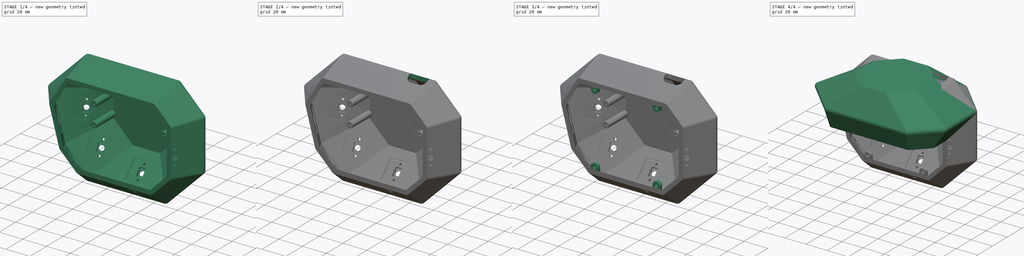
[diagram: build sequence overview — one tinted view per stage of 4, left to right]
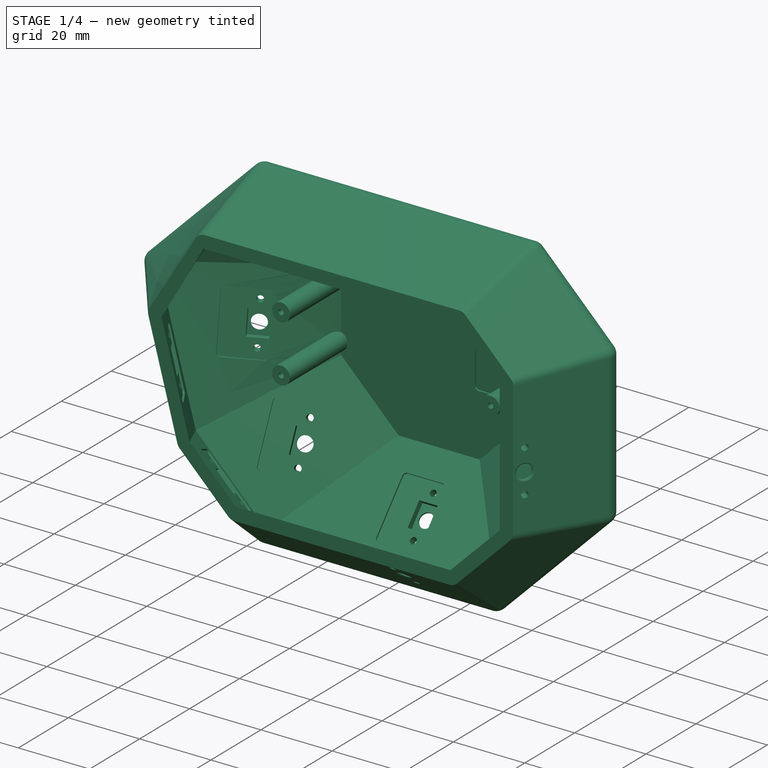
[diagram: stage 1 of 4 — iso view after this stage's code; geometry added in this stage tinted green]
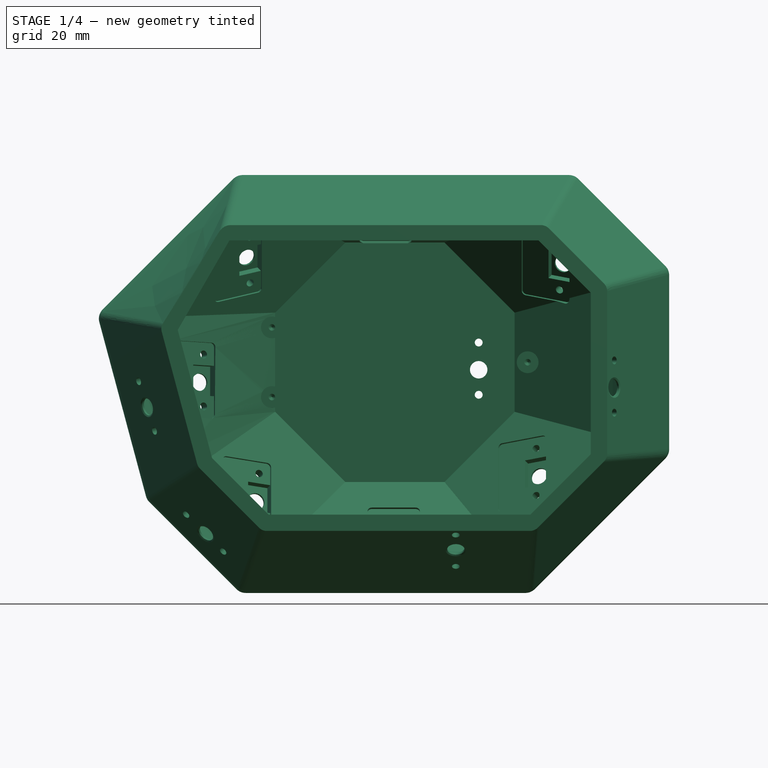
[diagram: stage 1 of 4 — front view after this stage's code; geometry added in this stage tinted green]
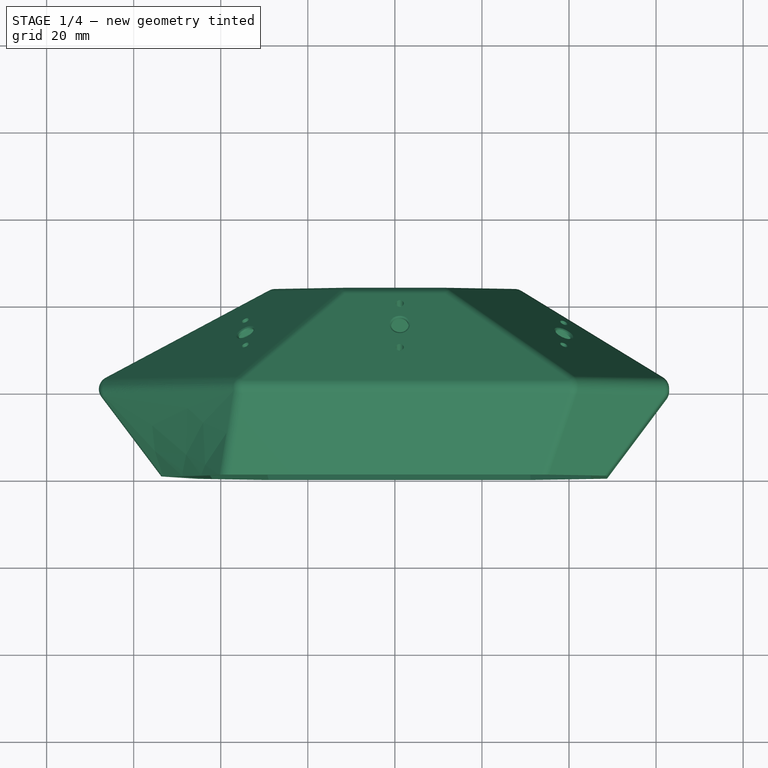
[diagram: stage 1 of 4 — top view after this stage's code; geometry added in this stage tinted green]
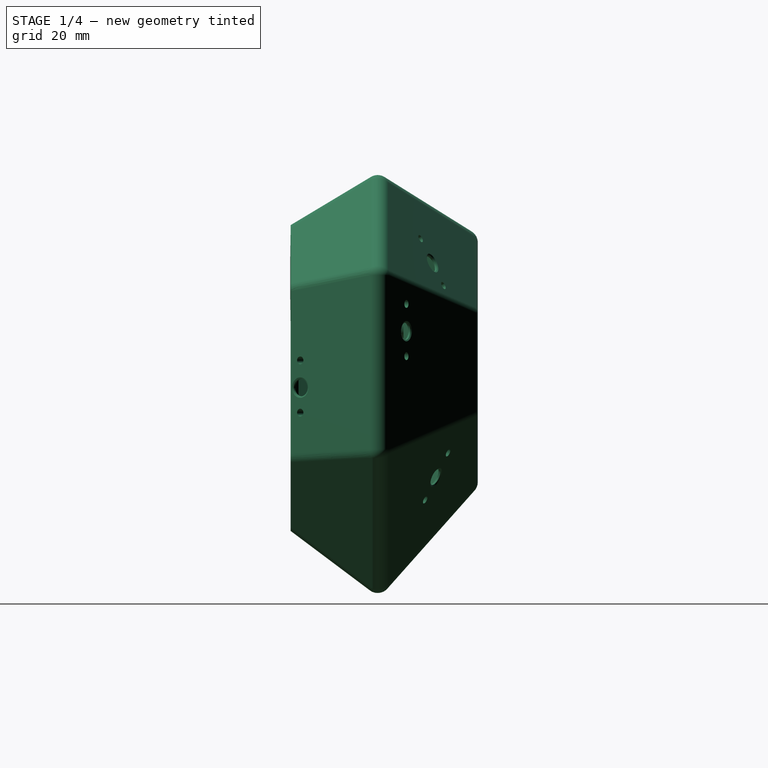
[diagram: stage 1 of 4 — right view after this stage's code; geometry added in this stage tinted green]
FCSTD DOCUMENT  (FreeCAD 0.20R29603 (Git))
Label: tracker-tut
License: All rights reserved
LicenseURL: http://en.wikipedia.org/wiki/All_rights_reserved
objects: PartDesign::Point×39, App::Link×16, PartDesign::CoordinateSystem×13, App::AnnotationLabel×13, Sketcher::SketchObject×9, PartDesign::Plane×3, PartDesign::Body×2, Part::Feature×2, PartDesign::Pad×2, PartDesign::Hole×2, PartDesign::Pocket×2, PartDesign::AdditiveLoft×1, PartDesign::Thickness×1, Spreadsheet::Sheet×1, PartDesign::FeatureBase×1, PartDesign::Mirrored×1, PartDesign::Fillet×1, App::DocumentObjectGroup×1
note: 88 computed .brp shape members not serialized (recipe doc carries the construction recipe); baked Part::Feature solids carry a one-line shape summary decoded from their .brp
EXTERNAL_REF file=tracker-mainboard.FCStd obj=PCB
EXTERNAL_REF file=sensor-PCB.FCStd obj=Part014
EXTERNAL_REF file=stamp.FCStd obj=Body
EXTERNAL_REF file=stamp-simple.FCStd obj=Body

FEATURE [App::Link] Link001  label="sensor"
  LinkPlacement = pos=(45.7143,2.6191,2.92684) rot=(-0.816497,-0.408248,0.408248;1.77215rad)
  LinkedObject = -> <external sensor-PCB.FCStd>#Part014
  Placement = pos=(45.7143,2.6191,2.92684) rot=(-0.816497,-0.408248,0.408248;1.77215rad)
FEATURE [App::Link] Link002  label="sensor001"
  LinkPlacement = pos=(-57.7888,16.106,-1.72159) rot=(-0.771263,0.285325,-0.568984;1.73625rad)
  LinkedObject = -> <external sensor-PCB.FCStd>#Part014
  Placement = pos=(-57.7888,16.106,-1.72159) rot=(-0.771263,0.285325,-0.568984;1.73625rad)
FEATURE [App::Link] Link003  label="sensor002"
  LinkPlacement = pos=(3.63536,24.9138,35.7496) rot=(0,-0.961249,0.275683;3.14159rad)
  LinkedObject = -> <external sensor-PCB.FCStd>#Part014
  Placement = pos=(3.63536,24.9138,35.7496) rot=(0,-0.961249,0.275683;3.14159rad)
FEATURE [App::Link] Link004  label="sensor003"
  LinkPlacement = pos=(-30.3384,26.4115,30.7926) rot=(0.11573,-0.855756,0.50427;3.52945rad)
  LinkedObject = -> <external sensor-PCB.FCStd>#Part014
  Placement = pos=(-30.3384,26.4115,30.7926) rot=(0.11573,-0.855756,0.50427;3.52945rad)
FEATURE [App::Link] Link005  label="sensor004"
  LinkPlacement = pos=(-28.2938,33.3168,-23.0907) rot=(0.160407,-0.539182,0.826772;3.35005rad)
  LinkedObject = -> <external sensor-PCB.FCStd>#Part014
  Placement = pos=(-28.2938,33.3168,-23.0907) rot=(0.160407,-0.539182,0.826772;3.35005rad)
FEATURE [App::Link] Link006  label="sensor005"
  LinkPlacement = pos=(21.7547,39,7.02316) rot=(0,-0.707107,0.707107;3.14159rad)
  LinkedObject = -> <external sensor-PCB.FCStd>#Part014
  Placement = pos=(21.7547,39,7.02316) rot=(0,-0.707107,0.707107;3.14159rad)
FEATURE [PartDesign::Point] p_surf0
  AttacherType = Attacher::AttachEnginePoint
  Placement = pos=(55.6643,9.21912,-8.57316) rot=(0,0,1;0rad)
FEATURE [PartDesign::Point] p_norm0
  AttacherType = Attacher::AttachEnginePoint
  Placement = pos=(56.4643,8.61912,-8.57316) rot=(0,0,1;0rad)
FEATURE [PartDesign::Point] p_aux0
  AttacherType = Attacher::AttachEnginePoint
  Placement = pos=(54.6643,9.21912,-8.57316) rot=(0,0,1;0rad)
FEATURE [PartDesign::CoordinateSystem] s_lcs0
  AttacherType = Attacher::AttachEngine3D
  MapMode = 47
  Placement = pos=(55.6643,9.21912,-8.57316) rot=(-0.333333,0.666667,-0.666667;2.49809rad)
  Support = -> [p_surf0,p_norm0,p_aux0]
FEATURE [PartDesign::Point] p_surf1
  AttacherType = Attacher::AttachEnginePoint
  Placement = pos=(-55.5034,8.89833,-9.68447) rot=(0,0,1;0rad)
FEATURE [PartDesign::Point] p_norm1
  AttacherType = Attacher::AttachEnginePoint
  Placement = pos=(-56.296,8.32669,-9.89683) rot=(0,0,1;0rad)
FEATURE [PartDesign::Point] p_aux1
  AttacherType = Attacher::AttachEnginePoint
  Placement = pos=(-56.5034,8.89833,-9.68447) rot=(0,0,1;0rad)
FEATURE [PartDesign::CoordinateSystem] s_lcs1
  AttacherType = Attacher::AttachEngine3D
  MapMode = 47
  Placement = pos=(-55.5034,8.89833,-9.68447) rot=(0.270563,0.790424,-0.549568;3.88381rad)
  Support = -> [p_surf1,p_norm1,p_aux1]
FEATURE [PartDesign::Point] p_surf2
  AttacherType = Attacher::AttachEnginePoint
  Placement = pos=(-2.11464,34.2418,34.6366) rot=(0,0,1;0rad)
FEATURE [PartDesign::Point] p_norm2
  AttacherType = Attacher::AttachEnginePoint
  Placement = pos=(-2.11464,34.7718,35.4846) rot=(0,0,1;0rad)
FEATURE [PartDesign::Point] p_aux2
  AttacherType = Attacher::AttachEnginePoint
  Placement = pos=(-3.11464,34.2418,34.6366) rot=(0,0,1;0rad)
FEATURE [PartDesign::CoordinateSystem] s_lcs2
  AttacherType = Attacher::AttachEngine3D
  MapMode = 47
  Placement = pos=(-2.11464,34.2418,34.6366) rot=(0,0.275683,0.961249;3.14159rad)
  Support = -> [p_surf2,p_norm2,p_aux2]
FEATURE [PartDesign::Point] p_surf3
  AttacherType = Attacher::AttachEnginePoint
  Placement = pos=(-37.2571,31.4856,23.8863) rot=(0,0,1;0rad)
FEATURE [PartDesign::Point] p_norm3
  AttacherType = Attacher::AttachEnginePoint
  Placement = pos=(-37.6931,32.2729,24.3223) rot=(0,0,1;0rad)
FEATURE [PartDesign::Point] p_aux3
  AttacherType = Attacher::AttachEnginePoint
  Placement = pos=(-38.2571,31.4856,23.8863) rot=(0,0,1;0rad)
FEATURE [PartDesign::CoordinateSystem] s_lcs3
  AttacherType = Attacher::AttachEngine3D
  MapMode = 47
  Placement = pos=(-37.2571,31.4856,23.8863) rot=(-0.193969,0.498039,0.845182;3.36921rad)
  Support = -> [p_surf3,p_norm3,p_aux3]
FEATURE [PartDesign::Point] p_surf4
  AttacherType = Attacher::AttachEnginePoint
  Placement = pos=(-35.1225,31.3167,-31.4979) rot=(0,0,1;0rad)
FEATURE [PartDesign::Point] p_norm4
  AttacherType = Attacher::AttachEnginePoint
  Placement = pos=(-35.4964,32.1654,-31.8719) rot=(0,0,1;0rad)
FEATURE [PartDesign::Point] p_aux4
  AttacherType = Attacher::AttachEnginePoint
  Placement = pos=(-36.1225,31.3167,-31.4979) rot=(0,0,1;0rad)
FEATURE [PartDesign::CoordinateSystem] s_lcs4
  AttacherType = Attacher::AttachEngine3D
  MapMode = 47
  Placement = pos=(-35.1225,31.3167,-31.4979) rot=(-0.105392,0.832954,0.543213;3.46204rad)
  Support = -> [p_surf4,p_norm4,p_aux4]
FEATURE [PartDesign::Point] p_surf5
  AttacherType = Attacher::AttachEnginePoint
  Placement = pos=(16.0047,43,-1.47684) rot=(0,0,1;0rad)
FEATURE [PartDesign::Point] p_norm5
  AttacherType = Attacher::AttachEnginePoint
  Placement = pos=(16.0047,44,-1.47684) rot=(0,0,1;0rad)
FEATURE [PartDesign::Point] p_aux5
  AttacherType = Attacher::AttachEnginePoint
  Placement = pos=(15.0047,43,-1.47684) rot=(0,0,1;0rad)
FEATURE [PartDesign::CoordinateSystem] s_lcs5
  AttacherType = Attacher::AttachEngine3D
  MapMode = 47
  Placement = pos=(16.0047,43,-1.47684) rot=(0,0.707107,0.707107;3.14159rad)
  Support = -> [p_surf5,p_norm5,p_aux5]
FEATURE [App::Link] Link008  label="sensor006"
  LinkPlacement = pos=(5.48131,33.8555,-32.9074) rot=(0,-0.409656,0.91224;3.14159rad)
  LinkedObject = -> <external sensor-PCB.FCStd>#Part014
  Placement = pos=(5.48131,33.8555,-32.9074) rot=(0,-0.409656,0.91224;3.14159rad)
FEATURE [App::Link] Link009  label="sensor007"
  LinkPlacement = pos=(55.0124,21.8951,15.8852) rot=(0.196249,0.693356,-0.693356;3.52916rad)
  LinkedObject = -> <external sensor-PCB.FCStd>#Part014
  Placement = pos=(55.0124,21.8951,15.8852) rot=(0.196249,0.693356,-0.693356;3.52916rad)
FEATURE [App::Link] Link010  label="sensor008"
  LinkPlacement = pos=(39.4974,24.5682,28.6179) rot=(-0.110255,-0.842618,0.527105;2.79267rad)
  LinkedObject = -> <external sensor-PCB.FCStd>#Part014
  Placement = pos=(39.4974,24.5682,28.6179) rot=(-0.110255,-0.842618,0.527105;2.79267rad)
FEATURE [App::Link] Link011  label="sensor009"
  LinkPlacement = pos=(-41.0189,31.3218,4.27885) rot=(0.195584,-0.654395,0.73042;3.48853rad)
  LinkedObject = -> <external sensor-PCB.FCStd>#Part014
  Placement = pos=(-41.0189,31.3218,4.27885) rot=(0.195584,-0.654395,0.73042;3.48853rad)
FEATURE [App::Link] Link012  label="sensor010"
  LinkPlacement = pos=(16.4988,15.2646,-45.1984) rot=(0,0.316228,0.948683;3.14159rad)
  LinkedObject = -> <external sensor-PCB.FCStd>#Part014
  Placement = pos=(16.4988,15.2646,-45.1984) rot=(0,0.316228,0.948683;3.14159rad)
FEATURE [App::Link] Link013  label="sensor011"
  LinkPlacement = pos=(-48.4586,17.9331,-31.9871) rot=(-0.64412,0.079868,-0.760743;1.58051rad)
  LinkedObject = -> <external sensor-PCB.FCStd>#Part014
  Placement = pos=(-48.4586,17.9331,-31.9871) rot=(-0.64412,0.079868,-0.760743;1.58051rad)
FEATURE [App::Link] Link014  label="sensor012"
  LinkPlacement = pos=(34.0957,33.0679,-16.5489) rot=(-0.174608,-0.522191,0.834763;2.924rad)
  LinkedObject = -> <external sensor-PCB.FCStd>#Part014
  Placement = pos=(34.0957,33.0679,-16.5489) rot=(-0.174608,-0.522191,0.834763;2.924rad)
FEATURE [PartDesign::Point] p_surf6
  AttacherType = Attacher::AttachEnginePoint
  Placement = pos=(-0.26869,31.198,-41.9178) rot=(0,0,1;0rad)
FEATURE [PartDesign::Point] p_norm6
  AttacherType = Attacher::AttachEnginePoint
  Placement = pos=(-0.26869,31.9454,-42.5822) rot=(0,0,1;0rad)
FEATURE [PartDesign::Point] p_aux6
  AttacherType = Attacher::AttachEnginePoint
  Placement = pos=(-1.26869,31.198,-41.9178) rot=(0,0,1;0rad)
FEATURE [PartDesign::CoordinateSystem] s_lcs6
  AttacherType = Attacher::AttachEngine3D
  MapMode = 47
  Placement = pos=(-0.26869,31.198,-41.9178) rot=(0,0.91224,0.409656;3.14159rad)
  Support = -> [p_surf6,p_norm6,p_aux6]
FEATURE [PartDesign::Point] p_surf7
  AttacherType = Attacher::AttachEnginePoint
  Placement = pos=(47.1018,31.4599,0.385248) rot=(0,0,1;0rad)
FEATURE [PartDesign::Point] p_norm7
  AttacherType = Attacher::AttachEnginePoint
  Placement = pos=(47.6259,32.3115,0.385248) rot=(0,0,1;0rad)
FEATURE [PartDesign::Point] p_aux7
  AttacherType = Attacher::AttachEnginePoint
  Placement = pos=(46.1018,31.4599,0.385248) rot=(0,0,1;0rad)
FEATURE [PartDesign::CoordinateSystem] s_lcs7
  AttacherType = Attacher::AttachEngine3D
  MapMode = 47
  Placement = pos=(47.1018,31.4599,0.385248) rot=(0.196249,0.693356,0.693356;2.75402rad)
  Support = -> [p_surf7,p_norm7,p_aux7]
FEATURE [PartDesign::Point] p_surf8
  AttacherType = Attacher::AttachEnginePoint
  Placement = pos=(35.8327,33.6545,23.5859) rot=(0,0,1;0rad)
FEATURE [PartDesign::Point] p_norm8
  AttacherType = Attacher::AttachEnginePoint
  Placement = pos=(36.2335,34.4784,23.9867) rot=(0,0,1;0rad)
FEATURE [PartDesign::Point] p_aux8
  AttacherType = Attacher::AttachEnginePoint
  Placement = pos=(34.8327,33.6545,23.5859) rot=(0,0,1;0rad)
FEATURE [PartDesign::CoordinateSystem] s_lcs8
  AttacherType = Attacher::AttachEngine3D
  MapMode = 47
  Placement = pos=(35.8327,33.6545,23.5859) rot=(0.174608,0.522191,0.834763;2.924rad)
  Support = -> [p_surf8,p_norm8,p_aux8]
FEATURE [PartDesign::Point] p_surf9
  AttacherType = Attacher::AttachEnginePoint
  Placement = pos=(-47.9984,30.9792,-4.23481) rot=(0,0,1;0rad)
FEATURE [PartDesign::Point] p_norm9
  AttacherType = Attacher::AttachEnginePoint
  Placement = pos=(-48.4981,31.8401,-4.32964) rot=(0,0,1;0rad)
FEATURE [PartDesign::Point] p_aux9
  AttacherType = Attacher::AttachEnginePoint
  Placement = pos=(-48.9984,30.9792,-4.23481) rot=(0,0,1;0rad)
FEATURE [PartDesign::CoordinateSystem] s_lcs9
  AttacherType = Attacher::AttachEngine3D
  MapMode = 47
  Placement = pos=(-47.9984,30.9792,-4.23481) rot=(-0.175892,0.733193,0.656879;3.52931rad)
  Support = -> [p_surf9,p_norm9,p_aux9]
FEATURE [PartDesign::Point] p_surf10
  AttacherType = Attacher::AttachEnginePoint
  Placement = pos=(10.7488,6.06458,-43.2984) rot=(0,0,1;0rad)
FEATURE [PartDesign::Point] p_norm10
  AttacherType = Attacher::AttachEnginePoint
  Placement = pos=(10.7488,5.46458,-44.0984) rot=(0,0,1;0rad)
FEATURE [PartDesign::Point] p_aux10
  AttacherType = Attacher::AttachEnginePoint
  Placement = pos=(9.74881,6.06458,-43.2984) rot=(0,0,1;0rad)
FEATURE [PartDesign::CoordinateSystem] s_lcs10
  AttacherType = Attacher::AttachEngine3D
  MapMode = 47
  Placement = pos=(10.7488,6.06458,-43.2984) rot=(0,0.948683,-0.316228;3.14159rad)
  Support = -> [p_surf10,p_norm10,p_aux10]
FEATURE [PartDesign::Point] p_surf11
  AttacherType = Attacher::AttachEnginePoint
  Placement = pos=(-44.5871,10.8299,-35.6162) rot=(0,0,1;0rad)
FEATURE [PartDesign::Point] p_norm11
  AttacherType = Attacher::AttachEnginePoint
  Placement = pos=(-45.1617,10.2472,-36.1909) rot=(0,0,1;0rad)
FEATURE [PartDesign::Point] p_aux11
  AttacherType = Attacher::AttachEnginePoint
  Placement = pos=(-45.5871,10.8299,-35.6162) rot=(0,0,1;0rad)
FEATURE [PartDesign::CoordinateSystem] s_lcs11
  AttacherType = Attacher::AttachEngine3D
  MapMode = 47
  Placement = pos=(-44.5871,10.8299,-35.6162) rot=(0.121056,0.91575,-0.383077;3.70498rad)
  Support = -> [p_surf11,p_norm11,p_aux11]
FEATURE [PartDesign::Point] p_surf12
  AttacherType = Attacher::AttachEnginePoint
  Placement = pos=(30.431,34.717,-26.8038) rot=(0,0,1;0rad)
FEATURE [PartDesign::Point] p_norm12
  AttacherType = Attacher::AttachEnginePoint
  Placement = pos=(30.8318,35.5409,-27.2046) rot=(0,0,1;0rad)
FEATURE [PartDesign::Point] p_aux12
  AttacherType = Attacher::AttachEnginePoint
  Placement = pos=(29.431,34.717,-26.8038) rot=(0,0,1;0rad)
FEATURE [PartDesign::CoordinateSystem] s_lcs12
  AttacherType = Attacher::AttachEngine3D
  MapMode = 47
  Placement = pos=(30.431,34.717,-26.8038) rot=(0.110255,0.842618,0.527105;2.79267rad)
  Support = -> [p_surf12,p_norm12,p_aux12]
FEATURE [PartDesign::Body] Body  label="tracker-base"
  Group = -> [Sketch,DatumPlane,DatumPlane001,Sketch001,Sketch002,AdditiveLoft,Thickness,p_surf0,p_norm0,p_aux0,s_lcs0,p_surf1,p_norm1,p_aux1,s_lcs1,p_surf2,p_norm2,p_aux2,s_lcs2,p_surf3,p_norm3,p_aux3,s_lcs3,p_surf4,p_norm4,p_aux4,s_lcs4,p_surf5,p_norm5,p_aux5,s_lcs5,p_surf6,p_norm6,p_aux6,s_lcs6,p_surf7,p_norm7,p_aux7,s_lcs7,p_surf8,p_norm8,p_aux8,s_lcs8,p_surf9,p_norm9,p_aux9,s_lcs9,p_surf10,p_norm10,+10 more]
  Origin = -> Origin
  Placement = pos=(0,0,0) rot=(-1,0,0;1.5708rad)
  Tip = -> Thickness
FEATURE [App::Link] Link015  label="stamp"
  LinkPlacement = pos=(0,-154,68) rot=(0,0,1;0rad)
  LinkedObject = -> <external stamp.FCStd>#Body
  Placement = pos=(0,-154,68) rot=(0,0,1;0rad)
FEATURE [App::Link] Link016  label="stamp-simplified"
  LinkPlacement = pos=(0,-118,68) rot=(0,0,1;0rad)
  LinkedObject = -> <external stamp-simple.FCStd>#Body
  Placement = pos=(0,-118,68) rot=(0,0,1;0rad)
FEATURE [Part::Feature] cut_obj  label="Tracker edited"
  shape: bbox 140.1 x 53.46 x 105.8 mm, 317 faces (baked)
FEATURE [Part::Feature] cut_obj_sim  label="Tracker edited (simple)"
  shape: bbox 140.1 x 53.46 x 105.8 mm, 109 faces (baked)
FEATURE [Spreadsheet::Sheet] SensorSpreadsheet
  cells = A1=X; B1=Y; C1=Z; D1=angle; E1=axis X; F1=axis Y; G1=axis Z; A2=0; B2=0; C2=0; D2=0; E2=0; F2=0; G2=1; A3=1.999996734817991; B3=5.966845559868261e-06; C3=8.283262147301684e-07; D3=5.122641877509564e-06; E3=0.4448767031303063; F3=0.6621436403862486; G3=0.6030344256408218; A4=0; B4=0; C4=0; D4=0; E4=0; F4=0; G4=1; A5=0; B5=0; C5=0; D5=0; E5=0; F5=0; G5=1; A6=0; B6=0; C6=0; D6=0; E6=0; F6=0; G6=1; A7=0; B7=0; C7=0; D7=0; E7=0; F7=0; G7=1; A8=0; B8=0; C8=0; D8=0; E8=0; F8=0; G8=1; A9=0; B9=0; C9=0; D9=0; E9=0; F9=0; G9=1; A10=0; B10=0; C10=0; D10=0; E10=0; F10=0; G10=1; A11=0; B11=0; C11=0; D11=0; E11=0; F11=0; G11=1; A12=0; B12=0; C12=0; D12=0; E12=0; F12=0; G12=1; A13=0.05361264846912661; B13=0.2156184947737607; C13=-5.958605598266331e-06; D13=14.99999774102259; E13=1.311070619179045e-07; F13=-3.102896130982157e-07; G13=-0.9999999999999434; A14=0; B14=0; C14=0; D14=0; E14=0; F14=0; G14=1
FEATURE [PartDesign::FeatureBase] BaseFeature
  BaseFeature = -> cut_obj
FEATURE [PartDesign::Plane] DatumPlane002
  AttachmentOffset = pos=(0,0,-17) rot=(0,0,1;0rad)
  Length = 153.4
  MapMode = 5
  Placement = pos=(0,17,3.8e-15) rot=(1,0,0;1.5708rad)
  ResizeMode = 0
  Support = -> [XZ_Plane001]
  Width = 118.409
FEATURE [Sketcher::SketchObject] Sketch003
  FullyConstrained = true
  MapMode = 5
  Placement = pos=(0,17,3.8e-15) rot=(1,0,0;1.5708rad)
  Support = -> [DatumPlane002]
  sketch-geometry (3):
    g0: Circle CenterX=-28.25 CenterY=8 CenterZ=0 NormalX=0 NormalY=0 NormalZ=1 AngleXU=0 Radius=2.5
    g1: Circle CenterX=-28.25 CenterY=-8 CenterZ=0 NormalX=0 NormalY=0 NormalZ=1 AngleXU=0 Radius=2.5
    g2: Circle CenterX=30.5 CenterY=0 CenterZ=0 NormalX=0 NormalY=0 NormalZ=1 AngleXU=0 Radius=2.5
  constraints (9):
    c: PointOnObject(g2,g-1)
    c: DistanceX(g0) = -28.25
    c: DistanceY(g0) = 8
    c: DistanceY(g1,g0) = 16
    c: DistanceX(g0,g2) = 58.75
    c: Equal(g0,g1)
    c: Equal(g1,g2)
    c: Diameter(g0) = 5
    c: Vertical(g1,g0)
FEATURE [PartDesign::Pad] Pad
  BaseFeature = -> BaseFeature
  Direction = (0,-1,-2e-16)
  Length = 18
  Length2 = 10
  Profile = -> Sketch003
  ReferenceAxis = -> Sketch003 [N_Axis]
  Reversed = true
  Type = 2
FEATURE [Sketcher::SketchObject] Sketch004
  FullyConstrained = true
  MapMode = 5
  Placement = pos=(0,17,3.8e-15) rot=(1,0,0;1.5708rad)
  Support = -> [DatumPlane002]
  sketch-geometry (3):
    g0: Circle CenterX=-28.25 CenterY=8 CenterZ=0 NormalX=0 NormalY=0 NormalZ=1 AngleXU=0 Radius=1
    g1: Circle CenterX=-28.25 CenterY=-8 CenterZ=0 NormalX=0 NormalY=0 NormalZ=1 AngleXU=0 Radius=1
    g2: Circle CenterX=30.5 CenterY=0 CenterZ=0 NormalX=0 NormalY=0 NormalZ=1 AngleXU=0 Radius=1
  constraints (9):
    c: PointOnObject(g2,g-1)
    c: DistanceX(g0) = -28.25
    c: DistanceY(g0) = 8
    c: DistanceY(g1,g0) = 16
    c: DistanceX(g2) = 30.5
    c: Equal(g0,g1)
    c: Equal(g0,g2)
    c: Diameter(g0) = 2
    c: Vertical(g1,g0)
FEATURE [PartDesign::Hole] Hole
  BaseFeature = -> Pad
  CustomThreadClearance = 0
  Depth = 8
  DepthType = 0
  Diameter = 1.5
  DrillForDepth = false
  DrillPoint = 1
  DrillPointAngle = 118
  HoleCutCountersinkAngle = 90
  HoleCutCustomValues = false
  HoleCutDepth = 0
  HoleCutDiameter = 6.1
  HoleCutType = 0
  ModelThread = false
  Profile = -> Sketch004
  Tapered = false
  TaperedAngle = 90
  ThreadClass = 0
  ThreadDepth = 8
  ThreadDepthType = 0
  ThreadDirection = 0
  ThreadFit = 0
  ThreadSize = 0
  ThreadType = 0
  Threaded = false
  UseCustomThreadClearance = false
FEATURE [PartDesign::Fillet] Fillet
  Base = -> Mirrored [Edge455]
  BaseFeature = -> Mirrored
  Radius = 5
  SupportTransform = false
  UseAllEdges = false
FEATURE [PartDesign::Body] Body001  label="Tracker final"
  BaseFeature = -> cut_obj
  Group = -> [BaseFeature,DatumPlane002,Sketch003,Pad,Sketch004,Hole,Sketch005,Pocket,Sketch006,Hole001,Sketch007,Pocket001,Sketch008,Pad001,Mirrored,Fillet]
  Origin = -> Origin001
  Tip = -> Fillet
FEATURE [App::AnnotationLabel] chlabel0
  BasePosition = (45.7143,2.6191,2.92684)
  LabelText = ch12
  TextPosition = (0,0,0)
FEATURE [App::AnnotationLabel] chlabel1
  BasePosition = (-57.7888,16.106,-1.72159)
  LabelText = ch4
  TextPosition = (0,0,0)
FEATURE [App::AnnotationLabel] chlabel2
  BasePosition = (3.63536,24.9138,35.7496)
  LabelText = ch9
  TextPosition = (0,0,0)
FEATURE [App::AnnotationLabel] chlabel3
  BasePosition = (-30.3384,26.4115,30.7926)
  LabelText = ch8
  TextPosition = (0,0,0)
FEATURE [App::AnnotationLabel] chlabel4
  BasePosition = (-28.2938,33.3168,-23.0907)
  LabelText = ch6
  TextPosition = (0,0,0)
FEATURE [App::AnnotationLabel] chlabel5
  BasePosition = (21.7547,39,7.02316)
  LabelText = ch10
  TextPosition = (0,0,0)
FEATURE [App::AnnotationLabel] chlabel6
  BasePosition = (5.48131,33.8555,-32.9074)
  LabelText = ch2
  TextPosition = (0,0,0)
FEATURE [App::AnnotationLabel] chlabel7
  BasePosition = (55.0124,21.8951,15.8852)
  LabelText = ch7
  TextPosition = (0,0,0)
FEATURE [App::AnnotationLabel] chlabel8
  BasePosition = (39.4974,24.5682,28.6179)
  LabelText = ch11
  TextPosition = (0,0,0)
FEATURE [App::AnnotationLabel] chlabel9
  BasePosition = (-41.0189,31.3218,4.27885)
  LabelText = ch5
  TextPosition = (0,0,0)
FEATURE [App::AnnotationLabel] chlabel10
  BasePosition = (16.4988,15.2646,-45.1984)
  LabelText = ch1
  TextPosition = (0,0,0)
FEATURE [App::AnnotationLabel] chlabel11
  BasePosition = (-48.4586,17.9331,-31.9871)
  LabelText = ch3
  TextPosition = (0,0,0)
FEATURE [App::AnnotationLabel] chlabel12
  BasePosition = (34.0957,33.0679,-16.5489)
  LabelText = ch0
  TextPosition = (0,0,0)
FEATURE [App::DocumentObjectGroup] LGroup  label="Label Group"
  Group = -> [chlabel0,chlabel1,chlabel2,chlabel3,chlabel4,chlabel5,chlabel6,chlabel7,chlabel8,chlabel9,chlabel10,chlabel11,chlabel12]

RESOLVED EXTERNAL PARTS (link-assembly join: the EXTERNAL_REF files above that resolve inside this repo's crawl, each included once):
---- part sensor-PCB.FCStd = doc fcstd_967db5b9da55 ----
FCSTD DOCUMENT  (FreeCAD 0.20R29603 (Git))
Label: sensor-PCB
License: All rights reserved
LicenseURL: http://en.wikipedia.org/wiki/All_rights_reserved
objects: Part::Feature×21, App::Part×16, App::Link×15, Part::Compound2×3, PartDesign::SubShapeBinder×2, PartDesign::CoordinateSystem×2, App::FeaturePython×1, PartDesign::Body×1
note: 26 computed .brp shape members not serialized (recipe doc carries the construction recipe); baked Part::Feature solids carry a one-line shape summary decoded from their .brp

FEATURE [App::FeaturePython] Constraints  # WARN: FeaturePython — macro-defined, semantics opaque (R4)
  _Version = 1
FEATURE [App::Link] Link  label="ball001"
  LinkPlacement = pos=(0,0.5,0.125) rot=(0,0,1;0rad)
  LinkedObject = -> Solid002
  Placement = pos=(0,0.5,0.125) rot=(0,0,1;0rad)
FEATURE [App::Link] Link001  label="ball002"
  LinkPlacement = pos=(0.5,0.5,0.125) rot=(0,0,1;0rad)
  LinkedObject = -> Solid002
  Placement = pos=(0.5,0.5,0.125) rot=(0,0,1;0rad)
FEATURE [App::Link] Link002  label="ball003"
  LinkPlacement = pos=(-0.5,0,0.125) rot=(0,0,1;0rad)
  LinkedObject = -> Solid002
  Placement = pos=(-0.5,0,0.125) rot=(0,0,1;0rad)
FEATURE [App::Link] Link003  label="ball004"
  LinkPlacement = pos=(0,0,0.125) rot=(0,0,1;0rad)
  LinkedObject = -> Solid002
  Placement = pos=(0,0,0.125) rot=(0,0,1;0rad)
FEATURE [App::Link] Link004  label="ball005"
  LinkPlacement = pos=(0.5,0,0.125) rot=(0,0,1;0rad)
  LinkedObject = -> Solid002
  Placement = pos=(0.5,0,0.125) rot=(0,0,1;0rad)
FEATURE [App::Link] Link005  label="ball006"
  LinkPlacement = pos=(-0.5,-0.5,0.125) rot=(0,0,1;0rad)
  LinkedObject = -> Solid002
  Placement = pos=(-0.5,-0.5,0.125) rot=(0,0,1;0rad)
FEATURE [App::Link] Link006  label="ball007"
  LinkPlacement = pos=(0,-0.5,0.125) rot=(0,0,1;0rad)
  LinkedObject = -> Solid002
  Placement = pos=(0,-0.5,0.125) rot=(0,0,1;0rad)
FEATURE [App::Link] Link007  label="ball008"
  LinkPlacement = pos=(0.5,-0.5,0.125) rot=(0,0,1;0rad)
  LinkedObject = -> Solid002
  Placement = pos=(0.5,-0.5,0.125) rot=(0,0,1;0rad)
FEATURE [App::Link] Link008  label="Terminal001"
  LinkPlacement = pos=(1.2,0.45,0) rot=(0,0,1;3.14159rad)
  LinkedObject = -> Part004
  Placement = pos=(1.2,0.45,0) rot=(0,0,1;3.14159rad)
FEATURE [App::Link] Link009  label="68X1XX183X22_Pin_TOP001"
  LinkPlacement = pos=(-0.4,1.05,-0.045) rot=(0,0,1;1.5708rad)
  LinkedObject = -> Solid010
  Placement = pos=(-0.4,1.05,-0.045) rot=(0,0,1;1.5708rad)
FEATURE [App::Link] Link010  label="68X1XX183X22_Pin_TOP002"
  LinkPlacement = pos=(0.6,1.05,-0.045) rot=(0,0,1;1.5708rad)
  LinkedObject = -> Solid010
  Placement = pos=(0.6,1.05,-0.045) rot=(0,0,1;1.5708rad)
FEATURE [App::Link] Link011  label="68X1XX183X22_Pin_TOP003"
  LinkPlacement = pos=(1.6,1.05,-0.045) rot=(0,0,1;1.5708rad)
  LinkedObject = -> Solid010
  Placement = pos=(1.6,1.05,-0.045) rot=(0,0,1;1.5708rad)
FEATURE [App::Link] Link012  label="pin001"
  LinkPlacement = pos=(0.375,3e-16,-3e-16) rot=(0,0,1;3.14159rad)
  LinkedObject = -> Solid019
  Placement = pos=(0.375,3e-16,-3e-16) rot=(0,0,1;3.14159rad)
FEATURE [App::Link] Link013  label="1x0.5x0.5x0.026"
  LinkPlacement = pos=(4.25098,5.93,0) rot=(0,0,-1;1.5708rad)
  LinkedObject = -> Part011
  Placement = pos=(4.25098,5.93,0) rot=(0,0,-1;1.5708rad)
FEATURE [App::Link] Link014  label="1x0.5x0.5x0.027"
  LinkPlacement = pos=(4.88605,11.5101,0) rot=(0,0,1;0rad)
  LinkedObject = -> Part011
  Placement = pos=(4.88605,11.5101,0) rot=(0,0,1;0rad)
FEATURE [App::Part] Part013  label="C2"
  Group = -> [Link013]
  Origin = -> Origin013
FEATURE [App::Part] Part015  label="C1"
  Group = -> [Link014]
  Origin = -> Origin015
FEATURE [Part::Feature] Shell  label="Open_CASCADE_STEP_translator_6.8_1.1"
  Placement = pos=(-0.81,-0.79,0) rot=(0,0,1;0rad)
  shape: bbox 0.2025 x 0.2025 x 2e-07 mm, 1 faces, 0 solids (baked)
FEATURE [Part::Feature] Solid  label="Open CASCADE STEP translator 6.8 2.1.1"
  Placement = pos=(0,0,-1.54144) rot=(0,0,1;0rad)
  shape: bbox 11.5 x 17 x 1.541 mm, 14 faces (baked)
FEATURE [App::Part] Part  label="Board"
  Group = -> [Solid]
  Origin = -> Origin
FEATURE [Part::Feature] Solid001  label="Open_CASCADE_STEP_translator_6.8_1.2.1"
  shape: bbox 1.62 x 1.58 x 0.475 mm, 8 faces (baked)
FEATURE [App::Part] Part001  label="Body"
  Group = -> [Solid001]
  Origin = -> Origin001
  Placement = pos=(-0.81,-0.79,0) rot=(0,0,1;0rad)
FEATURE [Part::Feature] Solid002  label="ball"
  Placement = pos=(-0.5,0.5,0.125) rot=(0,0,1;0rad)
  shape: bbox 0.25 x 0.25 x 0.25 mm, 1 faces (baked)
FEATURE [App::Part] Part002  label="5833252656"
  Group = -> [Shell,Part001,Solid002,Link,Link001,Link002,Link003,Link004,Link005,Link006,Link007]
  Origin = -> Origin002
  Placement = pos=(4.878,8.47,0) rot=(0,0,1;1.5708rad)
FEATURE [App::Part] Part003  label="U1"
  Group = -> [Part002]
  Origin = -> Origin003
FEATURE [Part::Feature] Solid003  label="Mid_Body"
  Placement = pos=(-1.2,-0.45,0) rot=(0,0,1;0rad)
  shape: bbox 2.28 x 0.9 x 0.48 mm, 6 faces (baked)
FEATURE [Part::Feature] Solid004  label="Open_CASCADE_STEP_translator_6.8_3.2.1"
  shape: bbox 0.7 x 0.9 x 0.6 mm, 10 faces (baked)
FEATURE [App::Part] Part004  label="Terminal"
  Group = -> [Solid004]
  Origin = -> Origin004
  Placement = pos=(-1.2,-0.45,0) rot=(0,0,1;0rad)
FEATURE [Part::Feature] Solid005  label="Mark"
  Placement = pos=(-0.5,-0.45,0.54) rot=(0,0,1;0rad)
  shape: bbox 1 x 0.9 x 0.06 mm, 6 faces (baked)
FEATURE [App::Part] Part005  label="5983538608"
  Group = -> [Solid003,Part004,Link008,Solid005]
  Origin = -> Origin005
  Placement = pos=(5.6,5.5,0) rot=(0,0,1;1.5708rad)
FEATURE [App::Part] Part006  label="R1"
  Group = -> [Part005]
  Origin = -> Origin006
FEATURE [Part::Feature] Solid006  label="68x109183x22"
  shape: bbox 7.5 x 3.1 x 1.2 mm, 237 faces (baked)
FEATURE [Part::Feature] Solid007  label="68x109183x22_Actuator"
  Placement = pos=(-1.67e-13,-2,5e-15) rot=(1,0,0;3.14159rad)
  shape: bbox 10.2 x 3.8 x 1.1 mm, 117 faces (baked)
FEATURE [Part::Feature] Solid008  label="68X1xx183x22_Solder_Pad2"
  Placement = pos=(2.8,-0.25,-0.02) rot=(0,0,-1;1.5708rad)
  shape: bbox 2 x 2.5 x 1.24 mm, 61 faces (baked)
FEATURE [Part::Feature] Solid009  label="68X1XX183X22_Solder_Pad"
  Placement = pos=(-2.8,-0.25,-0.02) rot=(0.707107,-0.707107,0;3.14159rad)
  shape: bbox 2 x 2.5 x 1.24 mm, 61 faces (baked)
FEATURE [Part::Feature] Solid010  label="68X1XX183X22_Pin_TOP"
  Placement = pos=(-1.4,1.05,-0.045) rot=(0,0,1;1.5708rad)
  shape: bbox 0.2 x 3.097 x 1.15 mm, 38 faces (baked)
FEATURE [App::Part] Part007  label="686104183422"
  Group = -> [Solid006,Solid007,Solid008,Solid009,Solid010,Link009,Link010,Link011]
  Origin = -> Origin007
  Placement = pos=(8.95005,8.49992,0.640001) rot=(0.707107,-0.707107,0;3.14159rad)
FEATURE [App::Part] Part008  label="J1"
  Group = -> [Part007]
  Origin = -> Origin008
FEATURE [Part::Feature] Solid011
  shape: bbox 4.436 x 3.936 x 1 mm, 6 faces (baked)
FEATURE [Part::Feature] Solid012
  shape: bbox 4.7 x 4.4 x 0.3 mm, 18 faces (baked)
FEATURE [Part::Feature] Solid013
  shape: bbox 4.5 x 4 x 0.4 mm, 21 faces (baked)
FEATURE [Part::Compound2] Compound  label="body"
  Links = -> [Solid011,Solid012,Solid013]
  Placement = pos=(-0.585529,0.102898,-0.610932) rot=(0,0,1;0rad)
FEATURE [Part::Feature] Solid014
  shape: bbox 0.8 x 1.1 x 0.3 mm, 6 faces (baked)
FEATURE [Part::Feature] Solid015
  shape: bbox 0.8 x 3.7 x 0.65 mm, 10 faces (baked)
FEATURE [Part::Compound2] Compound001  label="footA"
  Links = -> [Solid014,Solid015]
  Placement = pos=(-3.28553,0.102898,-1.16041) rot=(0.57735,0.57735,0.57735;2.0944rad)
FEATURE [Part::Feature] Solid016
  shape: bbox 0.8 x 1.1 x 0.3 mm, 6 faces (baked)
FEATURE [Part::Feature] Solid017
  shape: bbox 1.5 x 3.7 x 0.65 mm, 14 faces (baked)
FEATURE [Part::Compound2] Compound002  label="footB"
  Links = -> [Solid016,Solid017]
  Placement = pos=(2.11447,0.102898,-1.16093) rot=(0.57735,-0.57735,-0.57735;2.0944rad)
FEATURE [App::Part] Part009  label="BPW34"
  Group = -> [Compound,Compound001,Compound002,Solid012,Solid013,Solid011,Solid014,Solid015,Solid017,Solid016]
  Origin = -> Origin009
  Placement = pos=(2.39719,9.08559,-2.14144) rot=(0.707107,0.707107,0;3.14159rad)
FEATURE [App::Part] Part010  label="D1"
  Group = -> [Part009]
  Origin = -> Origin010
FEATURE [Part::Feature] Solid018  label="base"
  shape: bbox 0.5 x 0.5 x 0.5 mm, 10 faces (baked)
FEATURE [Part::Feature] Solid019  label="pin"
  Placement = pos=(-0.375,0,0) rot=(0,0,1;0rad)
  shape: bbox 0.25 x 0.5 x 0.5 mm, 18 faces (baked)
FEATURE [App::Part] Part011  label="1x0.5x0.5x0.25"
  Group = -> [Solid018,Solid019,Link012]
  Origin = -> Origin011
  Placement = pos=(4.88605,10.3671,0) rot=(0,0,1;0rad)
FEATURE [App::Part] Part012  label="C3"
  Group = -> [Part011]
  Origin = -> Origin012
FEATURE [PartDesign::SubShapeBinder] Binder001
  BindCopyOnChange = 0
  BindMode = 0
  ClaimChildren = false
  Context = -> Part014 [Sensor_shape.Binder001.]
  Fuse = false
  MakeFace = true
  OffsetFill = false
  OffsetIntersection = false
  OffsetJoinType = 0
  OffsetOpenResult = false
  PartialLoad = false
  Relative = true
  Support = -> [Part[Solid.Edge11,Solid.Edge10,Solid.Edge5,Solid.Edge3,Solid.Edge23,Solid.Edge22,Solid.Edge17,Solid.Edge16]]
  _Version = 2
FEATURE [PartDesign::SubShapeBinder] Binder
  BindCopyOnChange = 0
  BindMode = 0
  ClaimChildren = false
  Context = -> Part014 [Sensor_shape.Binder.]
  Fuse = false
  MakeFace = true
  OffsetFill = false
  OffsetIntersection = false
  OffsetJoinType = 0
  OffsetOpenResult = false
  PartialLoad = false
  Relative = true
  Support = -> [Part010[Part009.Compound.Edge96,Part009.Compound.Edge94,Part009.Compound.Edge92,Part009.Compound.Edge90]]
  _Version = 2
FEATURE [PartDesign::CoordinateSystem] Local_CS  label="LCS-Base"
  AttacherType = Attacher::AttachEngine3D
  AttachmentOffset = pos=(0,0,-4) rot=(1,0,0;3.14159rad)
  MapMode = 45
  Placement = pos=(5.75,8.5,-4) rot=(1,0,0;3.14159rad)
  Support = -> [Binder001]
FEATURE [PartDesign::CoordinateSystem] Local_CS001  label="LCS-Diode"
  AttacherType = Attacher::AttachEngine3D
  AttachmentOffset = pos=(0,0,0) rot=(1,0,0;3.14159rad)
  MapMode = 45
  Placement = pos=(2.50009,8.75006,-3.21051) rot=(1,0,0;3.14159rad)
  Support = -> [Binder]
FEATURE [PartDesign::Body] Sensor_shape  label="Sensor-shape"
  Group = -> [Binder001,Binder,Local_CS,Local_CS001]
  Origin = -> Origin016
FEATURE [App::Part] Part014  label="sensor"
  Group = -> [Part,Part003,Part006,Part008,Part010,Part012,Part013,Part015,Sensor_shape]
  Origin = -> Origin014
  Placement = pos=(-2.5,8.75,-3.2) rot=(1,0,0;3.14159rad)
---- part stamp-simple.FCStd = doc fcstd_f447b9fb0567 ----
FCSTD DOCUMENT  (FreeCAD 0.20R29603 (Git))
Label: stamp-simple
License: All rights reserved
LicenseURL: http://en.wikipedia.org/wiki/All_rights_reserved
objects: Sketcher::SketchObject×7, PartDesign::Pad×6, PartDesign::Fillet×3, PartDesign::CoordinateSystem×1, PartDesign::Plane×1, PartDesign::Groove×1, PartDesign::Body×1
note: 30 computed .brp shape members not serialized (recipe doc carries the construction recipe); baked Part::Feature solids carry a one-line shape summary decoded from their .brp

FEATURE [Sketcher::SketchObject] Sketch
  FullyConstrained = true
  MapMode = 5
  Support = -> [XY_Plane]
  sketch-geometry (4):
    g0: LineSegment StartX=-6 StartY=8.75 StartZ=0 EndX=6 EndY=8.75 EndZ=0
    g1: LineSegment StartX=6 StartY=8.75 StartZ=0 EndX=6 EndY=-8.75 EndZ=0
    g2: LineSegment StartX=6 StartY=-8.75 StartZ=0 EndX=-6 EndY=-8.75 EndZ=0
    g3: LineSegment StartX=-6 StartY=-8.75 StartZ=0 EndX=-6 EndY=8.75 EndZ=0
  constraints (11):
    c: Coincident(g0,g1)
    c: Coincident(g1,g2)
    c: Coincident(g2,g3)
    c: Coincident(g3,g0)
    c: Horizontal(g0)
    c: Horizontal(g2)
    c: Vertical(g1)
    c: Vertical(g3)
    c: Symmetric(g0,g1,g-1)
    c: DistanceY(g1,g1) = 17.5
    c: DistanceX(g2,g2) = 12
FEATURE [PartDesign::Pad] Pad
  Direction = (0,0,1)
  Length = 1.5
  Length2 = 10
  Profile = -> Sketch
  ReferenceAxis = -> Sketch [N_Axis]
  Type = 4
FEATURE [PartDesign::CoordinateSystem] Local_CS  label="LCS-Base"
  AttacherType = Attacher::AttachEngine3D
  AttachmentOffset = pos=(0,0,4) rot=(0,0,1;0rad)
  MapMode = 5
  Placement = pos=(0,0,4) rot=(0,0,1;0rad)
  Support = -> [XY_Plane]
FEATURE [Sketcher::SketchObject] Sketch001
  FullyConstrained = true
  MapMode = 5
  Support = -> [XY_Plane]
  sketch-geometry (2):
    g0: Circle CenterX=-3.25 CenterY=6 CenterZ=0 NormalX=0 NormalY=0 NormalZ=1 AngleXU=0 Radius=0.75
    g1: Circle CenterX=-3.25 CenterY=-6 CenterZ=0 NormalX=0 NormalY=0 NormalZ=1 AngleXU=0 Radius=0.75
  constraints (5):
    c: Equal(g1,g0)
    c: Symmetric(g0,g1,g-1)
    c: DistanceX(g0) = -3.25
    c: DistanceY(g0) = 6
    c: Diameter(g1) = 1.5
FEATURE [PartDesign::Pad] Pad001
  BaseFeature = -> Pad
  Direction = (0,0,1)
  Length = 10
  Length2 = 10
  Profile = -> Sketch001
  ReferenceAxis = -> Sketch001 [N_Axis]
  Type = 0
FEATURE [Sketcher::SketchObject] Sketch002
  ExternalGeometry = -> [Pad001]
  FullyConstrained = true
  MapMode = 5
  Placement = pos=(0,0,0) rot=(1,0,0;1.5708rad)
  Support = -> [XZ_Plane]
  sketch-geometry (3):
    g0: ArcOfCircle CenterX=6 CenterY=-10 CenterZ=0 NormalX=0 NormalY=0 NormalZ=1 AngleXU=0 Radius=10 StartAngle=2e-16 EndAngle=1.5708
    g1: LineSegment StartX=16 StartY=-10 StartZ=0 EndX=6 EndY=-10 EndZ=0
    g2: LineSegment StartX=6 StartY=-10 StartZ=0 EndX=6 EndY=0 EndZ=0
  constraints (8):
    c: PointOnObject(g0,g-3)
    c: Radius(g0) = 10
    c: Coincident(g0,g1)
    c: Coincident(g1,g2)
    c: Coincident(g2,g0)
    c: Horizontal(g1)
    c: Coincident(g1,g-3)
    c: Tangent(g0,g-1) = 1.5708
FEATURE [PartDesign::Pad] Pad002
  BaseFeature = -> Pad001
  Direction = (0,-1,-2e-16)
  Length = 10
  Length2 = 10
  Midplane = true
  Profile = -> Sketch002
  ReferenceAxis = -> Sketch002 [N_Axis]
  Type = 0
FEATURE [PartDesign::Fillet] Fillet
  Base = -> Pad002 [Edge13,Edge5,Edge2,Edge1]
  BaseFeature = -> Pad002
  Radius = 1
  SupportTransform = false
  UseAllEdges = false
FEATURE [PartDesign::Fillet] Fillet001
  Base = -> Fillet [Edge40,Edge39]
  BaseFeature = -> Fillet
  Radius = 1
  SupportTransform = false
  UseAllEdges = false
FEATURE [PartDesign::Fillet] Fillet002
  Base = -> Fillet001 [Edge8]
  BaseFeature = -> Fillet001
  Radius = 1
  SupportTransform = false
  UseAllEdges = false
FEATURE [Sketcher::SketchObject] Sketch003
  FullyConstrained = true
  MapMode = 5
  Placement = pos=(0,0,1.5) rot=(0,0,1;0rad)
  Support = -> [Fillet002]
  sketch-geometry (4):
    g0: LineSegment StartX=-6 StartY=3.5 StartZ=0 EndX=-0.5 EndY=3.5 EndZ=0
    g1: LineSegment StartX=-0.5 StartY=3.5 StartZ=0 EndX=-0.5 EndY=-3.5 EndZ=0
    g2: LineSegment StartX=-0.5 StartY=-3.5 StartZ=0 EndX=-6 EndY=-3.5 EndZ=0
    g3: LineSegment StartX=-6 StartY=-3.5 StartZ=0 EndX=-6 EndY=3.5 EndZ=0
  constraints (11):
    c: Coincident(g0,g1)
    c: Coincident(g1,g2)
    c: Coincident(g2,g3)
    c: Coincident(g3,g0)
    c: Horizontal(g0)
    c: Horizontal(g2)
    c: Vertical(g1)
    c: Symmetric(g0,g2,g-1)
    c: DistanceY(g3,g3) = 7
    c: DistanceX(g0) = -0.5
    c: DistanceX(g0,g0) = 5.5
FEATURE [PartDesign::Pad] Pad003
  BaseFeature = -> Fillet002
  Direction = (0,0,1)
  Length = 1.8
  Length2 = 10
  Profile = -> Sketch003
  ReferenceAxis = -> Sketch003 [N_Axis]
  Type = 0
FEATURE [Sketcher::SketchObject] Sketch004
  FullyConstrained = true
  MapMode = 5
  Placement = pos=(0,0,3.3) rot=(0,0,1;0rad)
  Support = -> [Pad003]
  sketch-geometry (1):
    g0: Circle CenterX=-3.25 CenterY=-0.25 CenterZ=0 NormalX=0 NormalY=0 NormalZ=1 AngleXU=0 Radius=2
  constraints (3):
    c: Diameter(g0) = 4
    c: DistanceX(g0) = -3.25
    c: DistanceY(g0) = -0.25
FEATURE [PartDesign::Pad] Pad004
  BaseFeature = -> Pad003
  Direction = (0,0,1)
  Length = 0.5
  Length2 = 10
  Profile = -> Sketch004
  ReferenceAxis = -> Sketch004 [N_Axis]
  Type = 0
FEATURE [Sketcher::SketchObject] Sketch005
  ExternalGeometry = -> [Pad004]
  FullyConstrained = true
  MapMode = 5
  Placement = pos=(0,0,3.8) rot=(0,0,1;0rad)
  Support = -> [Pad004]
  sketch-geometry (1):
    g0: Circle CenterX=-3.25 CenterY=-0.25 CenterZ=0 NormalX=0 NormalY=0 NormalZ=1 AngleXU=0 Radius=2
  constraints (2):
    c: Coincident(g0,g-3)
    c: Equal(g0,g-3)
FEATURE [PartDesign::Pad] Pad005
  BaseFeature = -> Pad004
  Direction = (0,0,1)
  Length = 7
  Length2 = 10
  Profile = -> Sketch005
  ReferenceAxis = -> Sketch005 [N_Axis]
  TaperAngle = 60
  Type = 0
FEATURE [PartDesign::Plane] DatumPlane
  Length = 60
  MapMode = 12
  Placement = pos=(-3.25,-0.25,3.8) rot=(1,0,0;1.5708rad)
  ResizeMode = 0
  Support = -> [Pad005]
  Width = 60
FEATURE [Sketcher::SketchObject] Sketch006
  ExternalGeometry = -> [Pad005]
  FullyConstrained = true
  MapMode = 5
  Placement = pos=(-3.25,-0.25,3.8) rot=(1,0,0;1.5708rad)
  Support = -> [DatumPlane]
  sketch-geometry (5):
    g0: LineSegment StartX=2 StartY=-9e-16 StartZ=0 EndX=2 EndY=-18 EndZ=0
    g1: LineSegment StartX=2 StartY=-18 StartZ=0 EndX=30 EndY=-18 EndZ=0
    g2: LineSegment StartX=30 StartY=-18 StartZ=0 EndX=30 EndY=7 EndZ=0
    g3: LineSegment StartX=30 StartY=7 StartZ=0 EndX=14.1244 EndY=7 EndZ=0
    g4: LineSegment StartX=14.1244 StartY=7 StartZ=0 EndX=2 EndY=-9e-16 EndZ=0
  constraints (13):
    c: Coincident(g0,g-4)
    c: Vertical(g0)
    c: Coincident(g0,g1)
    c: Horizontal(g1)
    c: Coincident(g1,g2)
    c: Vertical(g2)
    c: Coincident(g2,g3)
    c: Coincident(g3,g-4)
    c: Horizontal(g3)
    c: Coincident(g3,g4)
    c: Coincident(g4,g0)
    c: DistanceY(g2,g2) = 25
    c: DistanceX(g1) = 30
FEATURE [PartDesign::Groove] Groove
  Angle = 360
  Axis = (0,2e-16,1)
  Base = (-3.25,-0.25,3.8)
  BaseFeature = -> Pad005
  Profile = -> Sketch006
  ReferenceAxis = -> Sketch006 [V_Axis]
  Refine = true
FEATURE [PartDesign::Body] Body  label="stamp-simplified"
  Group = -> [Sketch,Pad,Sketch001,Pad001,Sketch002,Pad002,Fillet,Fillet001,Fillet002,Local_CS,Sketch003,Pad003,Sketch004,Pad004,Sketch005,Pad005,DatumPlane,Sketch006,Groove]
  Origin = -> Origin
  Tip = -> Groove
---- part stamp.FCStd = doc fcstd_9c2ba805fa80 ----
FCSTD DOCUMENT  (FreeCAD 0.20R29603 (Git))
Label: stamp
License: All rights reserved
LicenseURL: http://en.wikipedia.org/wiki/All_rights_reserved
objects: Sketcher::SketchObject×6, PartDesign::Pad×6, PartDesign::Fillet×3, PartDesign::CoordinateSystem×1, PartDesign::Body×1
note: 26 computed .brp shape members not serialized (recipe doc carries the construction recipe); baked Part::Feature solids carry a one-line shape summary decoded from their .brp

FEATURE [Sketcher::SketchObject] Sketch
  FullyConstrained = true
  MapMode = 5
  Support = -> [XY_Plane]
  sketch-geometry (4):
    g0: LineSegment StartX=-6 StartY=8.75 StartZ=0 EndX=6 EndY=8.75 EndZ=0
    g1: LineSegment StartX=6 StartY=8.75 StartZ=0 EndX=6 EndY=-8.75 EndZ=0
    g2: LineSegment StartX=6 StartY=-8.75 StartZ=0 EndX=-6 EndY=-8.75 EndZ=0
    g3: LineSegment StartX=-6 StartY=-8.75 StartZ=0 EndX=-6 EndY=8.75 EndZ=0
  constraints (11):
    c: Coincident(g0,g1)
    c: Coincident(g1,g2)
    c: Coincident(g2,g3)
    c: Coincident(g3,g0)
    c: Horizontal(g0)
    c: Horizontal(g2)
    c: Vertical(g1)
    c: Vertical(g3)
    c: Symmetric(g0,g1,g-1)
    c: DistanceY(g1,g1) = 17.5
    c: DistanceX(g2,g2) = 12
FEATURE [PartDesign::Pad] Pad
  Direction = (0,0,1)
  Length = 1.5
  Length2 = 10
  Profile = -> Sketch
  ReferenceAxis = -> Sketch [N_Axis]
  Type = 4
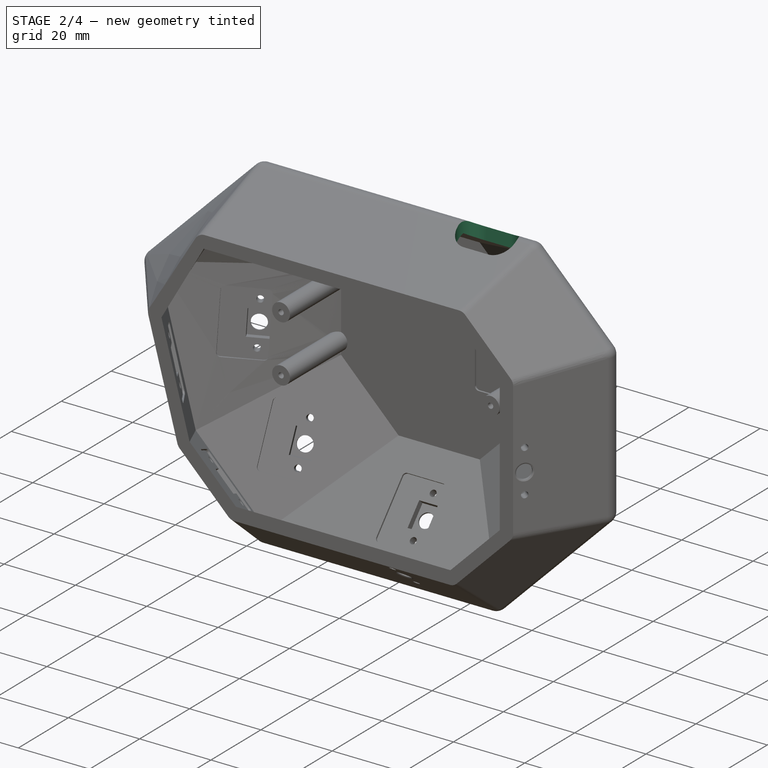
[diagram: stage 2 of 4 — iso view after this stage's code; geometry added in this stage tinted green]
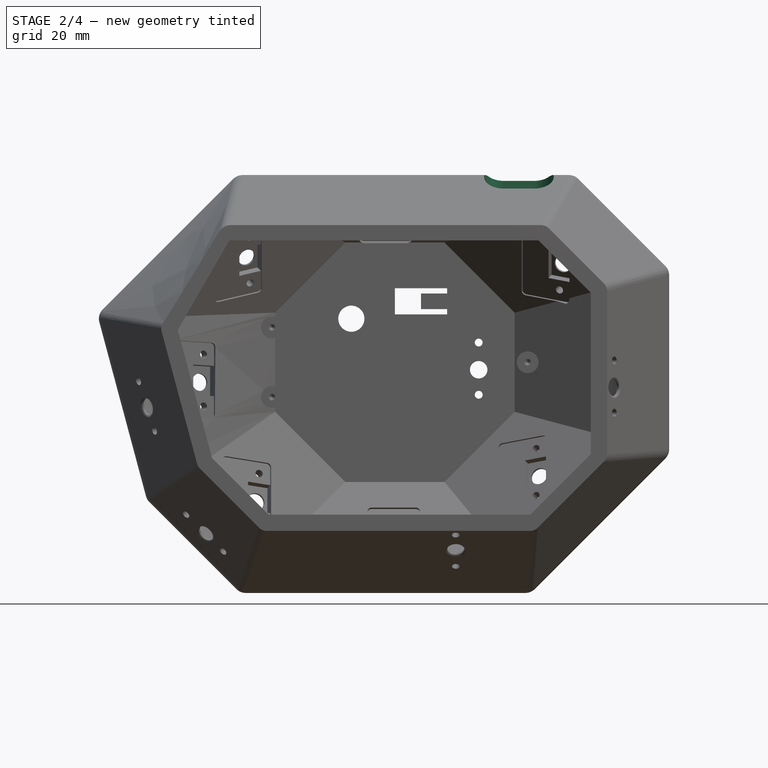
[diagram: stage 2 of 4 — front view after this stage's code; geometry added in this stage tinted green]
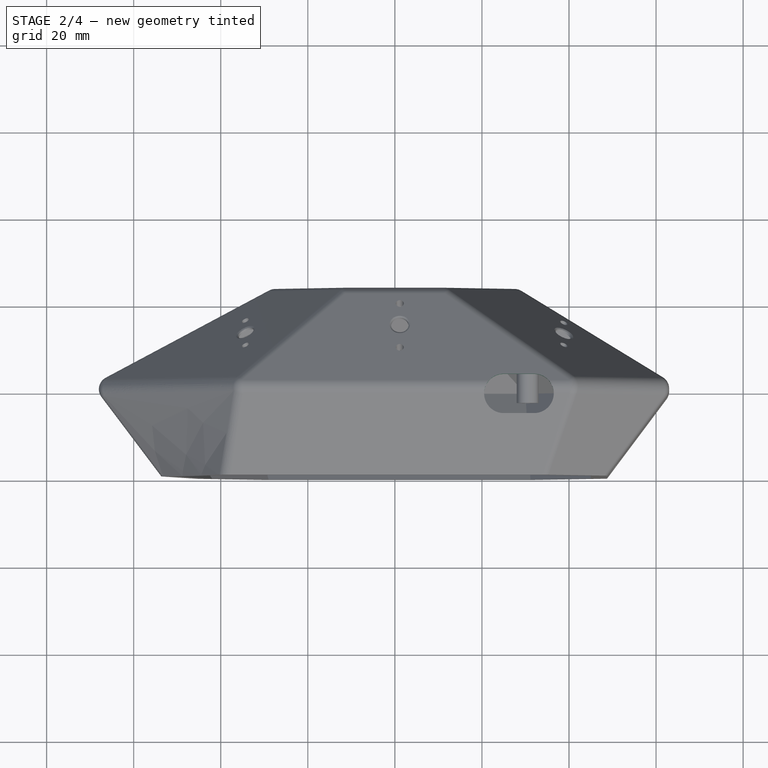
[diagram: stage 2 of 4 — top view after this stage's code; geometry added in this stage tinted green]
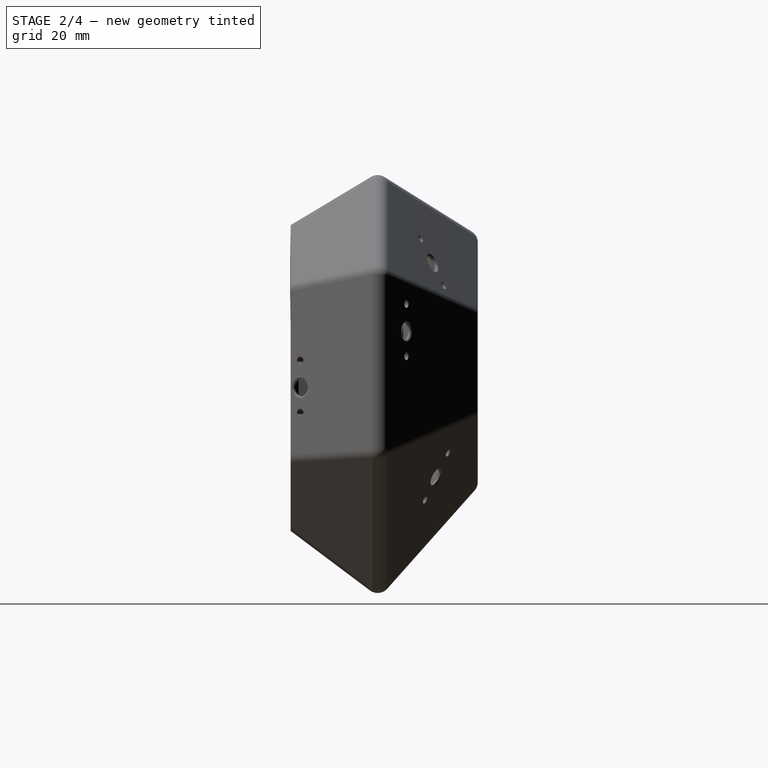
[diagram: stage 2 of 4 — right view after this stage's code; geometry added in this stage tinted green]
FEATURE [Sketcher::SketchObject] Sketch005
  AttachmentOffset = pos=(0,0,6) rot=(0,0,1;0rad)
  FullyConstrained = true
  MapMode = 5
  Placement = pos=(0,0,6) rot=(0,0,1;0rad)
  Support = -> [XY_Plane001]
  sketch-geometry (4):
    g0: ArcOfCircle CenterX=25 CenterY=18.5 CenterZ=0 NormalX=0 NormalY=0 NormalZ=1 AngleXU=0 Radius=4.5 StartAngle=1.5708 EndAngle=4.71239
    g1: ArcOfCircle CenterX=32 CenterY=18.5 CenterZ=0 NormalX=0 NormalY=0 NormalZ=1 AngleXU=0 Radius=4.5 StartAngle=4.71239 EndAngle=7.85398
    g2: LineSegment StartX=25 StartY=14 StartZ=0 EndX=32 EndY=14 EndZ=0
    g3: LineSegment StartX=32 StartY=23 StartZ=0 EndX=25 EndY=23 EndZ=0
  constraints (10):
    c: Tangent(g0,g2) = -1.5708
    c: Tangent(g2,g1) = -1.5708
    c: Tangent(g1,g3) = -1.5708
    c: Tangent(g3,g0) = -1.5708
    c: Equal(g0,g1)
    c: Horizontal(g2)
    c: DistanceX(g0) = 25
    c: DistanceY(g0) = 18.5
    c: DistanceX(g0,g1) = 7
    c: Radius(g1) = 4.5
FEATURE [PartDesign::Pocket] Pocket
  BaseFeature = -> Hole
  Direction = (0,0,-1)
  Length = 5
  Length2 = 5
  Profile = -> Sketch005
  ReferenceAxis = -> Sketch005 [N_Axis]
  Reversed = true
  Type = 1
FEATURE [Sketcher::SketchObject] Sketch006
  FullyConstrained = true
  MapMode = 5
  Placement = pos=(0,43,0) rot=(0,0.707107,0.707107;3.14159rad)
  Support = -> [Pocket]
  sketch-geometry (1):
    g0: Circle CenterX=10 CenterY=10 CenterZ=0 NormalX=0 NormalY=0 NormalZ=1 AngleXU=0 Radius=6
  constraints (3):
    c: DistanceX(g0) = 10
    c: DistanceY(g0) = 10
    c: Diameter(g0) = 12
FEATURE [PartDesign::Hole] Hole001
  BaseFeature = -> Pocket
  CustomThreadClearance = 0
  Depth = 5
  DepthType = 0
  Diameter = 6
  DrillForDepth = false
  DrillPoint = 1
  DrillPointAngle = 118
  HoleCutCountersinkAngle = 90
  HoleCutCustomValues = false
  HoleCutDepth = 2
  HoleCutDiameter = 12
  HoleCutType = 1
  ModelThread = false
  Profile = -> Sketch006
  Tapered = false
  TaperedAngle = 90
  ThreadClass = 0
  ThreadDepth = 5
  ThreadDepthType = 0
  ThreadDirection = 0
  ThreadFit = 0
  ThreadSize = 0
  ThreadType = 0
  Threaded = false
  UseCustomThreadClearance = false
FEATURE [Sketcher::SketchObject] Sketch007
  FullyConstrained = true
  MapMode = 5
  Placement = pos=(0,43,0) rot=(0,0.707107,0.707107;3.14159rad)
  Support = -> [Hole001]
  sketch-geometry (8):
    g0: LineSegment StartX=-12 StartY=17 StartZ=0 EndX=0 EndY=17 EndZ=0
    g1: LineSegment StartX=0 StartY=17 StartZ=0 EndX=0 EndY=11 EndZ=0
    g2: LineSegment StartX=0 StartY=11 StartZ=0 EndX=-12 EndY=11 EndZ=0
    g3: LineSegment StartX=-12 StartY=11 StartZ=0 EndX=-12 EndY=12.2 EndZ=0
    g4: LineSegment StartX=-12 StartY=12.2 StartZ=0 EndX=-6 EndY=12.2 EndZ=0
    g5: LineSegment StartX=-6 StartY=12.2 StartZ=0 EndX=-6 EndY=15.8 EndZ=0
    g6: LineSegment StartX=-6 StartY=15.8 StartZ=0 EndX=-12 EndY=15.8 EndZ=0
    g7: LineSegment StartX=-12 StartY=15.8 StartZ=0 EndX=-12 EndY=17 EndZ=0
  constraints (24):
    c: Horizontal(g0)
    c: Coincident(g0,g1)
    c: Coincident(g1,g2)
    c: Horizontal(g2)
    c: Coincident(g2,g3)
    c: Vertical(g3)
    c: Coincident(g3,g4)
    c: Horizontal(g4)
    c: Coincident(g4,g5)
    c: Vertical(g5)
    c: Coincident(g5,g6)
    c: Horizontal(g6)
    c: Coincident(g6,g7)
    c: Coincident(g7,g0)
    c: Vertical(g7)
    c: Vertical(g1)
    c: DistanceY(g1,g1) = 6
    c: Equal(g7,g3)
    c: DistanceY(g3,g3) = 1.2
    c: DistanceX(g4,g1) = 6
    c: DistanceX(g2,g2) = 12
    c: Vertical(g3,g6)
    c: DistanceX(g1) = 0
    c: DistanceY(g1) = 11
FEATURE [PartDesign::Pocket] Pocket001
  BaseFeature = -> Hole001
  Direction = (0,-1,-2e-16)
  Length = 5
  Length2 = 5
  Profile = -> Sketch007
  ReferenceAxis = -> Sketch007 [N_Axis]
  Type = 0
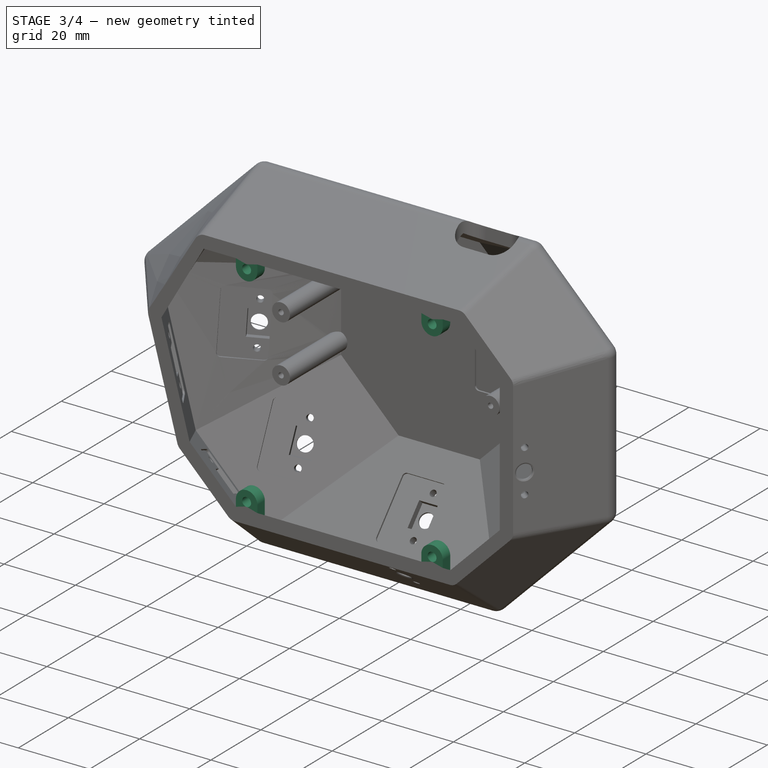
[diagram: stage 3 of 4 — iso view after this stage's code; geometry added in this stage tinted green]
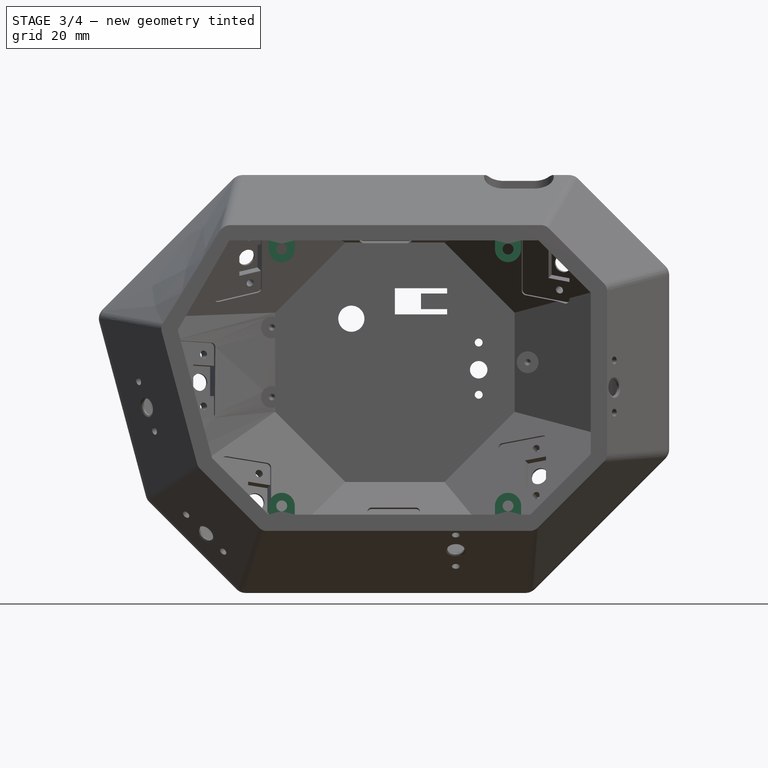
[diagram: stage 3 of 4 — front view after this stage's code; geometry added in this stage tinted green]
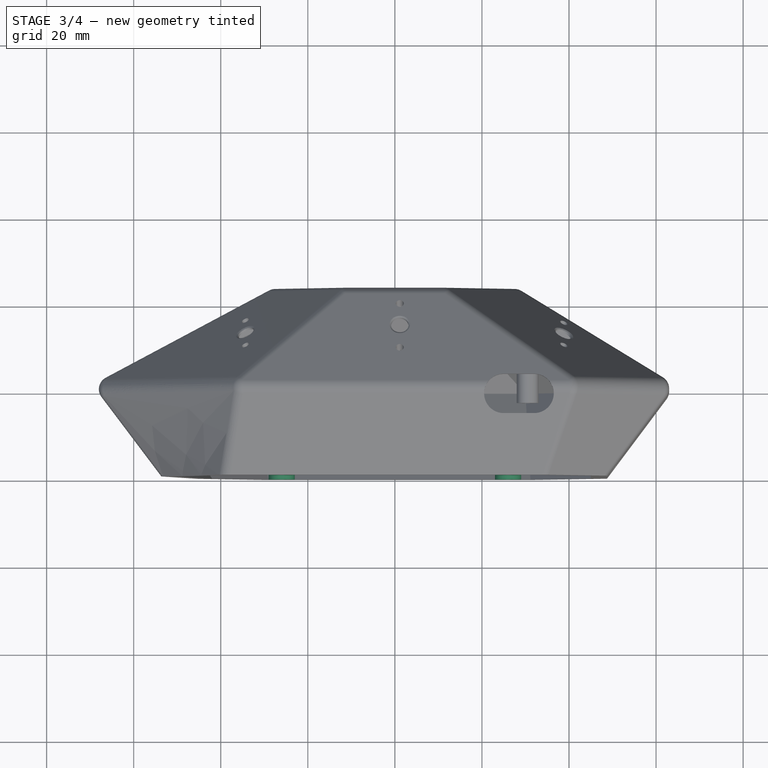
[diagram: stage 3 of 4 — top view after this stage's code; geometry added in this stage tinted green]
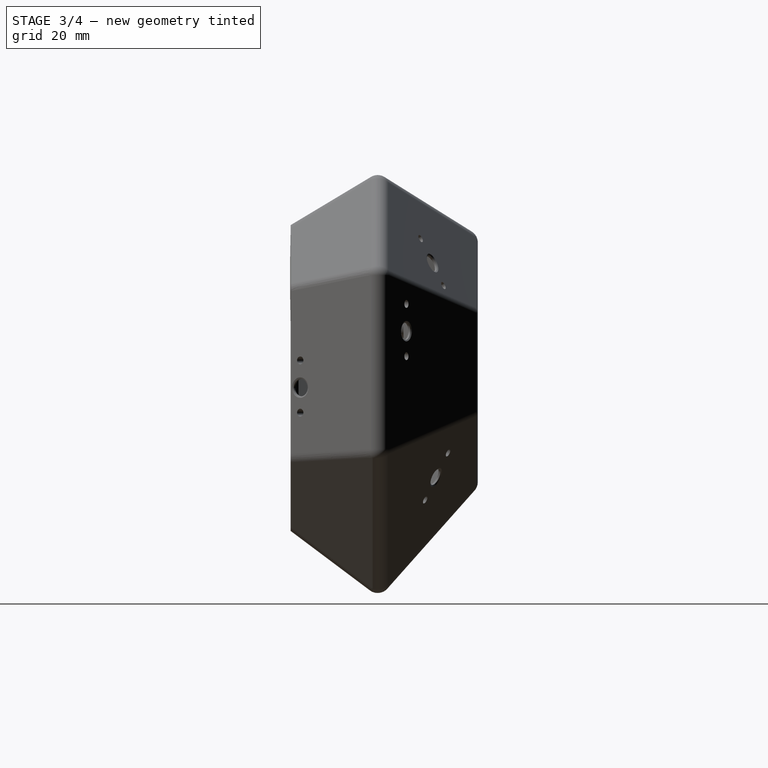
[diagram: stage 3 of 4 — right view after this stage's code; geometry added in this stage tinted green]
FEATURE [Sketcher::SketchObject] Sketch008
  FullyConstrained = true
  MapMode = 5
  Placement = pos=(0,0,0) rot=(1,0,0;1.5708rad)
  Support = -> [XZ_Plane001]
  sketch-geometry (10):
    g0: ArcOfCircle CenterX=-26 CenterY=26 CenterZ=0 NormalX=0 NormalY=0 NormalZ=1 AngleXU=0 Radius=3 StartAngle=3.14159 EndAngle=6.28319
    g1: LineSegment StartX=-29 StartY=26 StartZ=0 EndX=-29 EndY=31 EndZ=0
    g2: LineSegment StartX=-29 StartY=31 StartZ=0 EndX=-23 EndY=31 EndZ=0
    g3: LineSegment StartX=-23 StartY=31 StartZ=0 EndX=-23 EndY=26 EndZ=0
    g4: Circle CenterX=-26 CenterY=26 CenterZ=0 NormalX=0 NormalY=0 NormalZ=1 AngleXU=0 Radius=1.25
    g5: Circle CenterX=-26 CenterY=-33 CenterZ=0 NormalX=0 NormalY=0 NormalZ=1 AngleXU=0 Radius=1.25
    g6: ArcOfCircle CenterX=-26 CenterY=-33 CenterZ=0 NormalX=0 NormalY=0 NormalZ=1 AngleXU=0 Radius=3 StartAngle=5.6e-15 EndAngle=3.14159
    g7: LineSegment StartX=-29 StartY=-33 StartZ=0 EndX=-29 EndY=-38 EndZ=0
    g8: LineSegment StartX=-29 StartY=-38 StartZ=0 EndX=-23 EndY=-38 EndZ=0
    g9: LineSegment StartX=-23 StartY=-38 StartZ=0 EndX=-23 EndY=-33 EndZ=0
  constraints (26):
    c: Vertical(g1)
    c: Coincident(g1,g2)
    c: Horizontal(g2)
    c: Coincident(g2,g3)
    c: Vertical(g3)
    c: Tangent(g0,g3) = 1.5708
    c: Tangent(g0,g1) = 1.5708
    c: Coincident(g4,g0)
    c: Diameter(g4) = 2.5
    c: Radius(g0) = 3
    c: DistanceX(g0) = -26
    c: DistanceY(g0) = 26
    c: DistanceY(g0,g2) = 5
    c: Coincident(g6,g5)
    c: Coincident(g7,g8)
    c: Horizontal(g8)
    c: Coincident(g8,g9)
    c: Equal(g5,g4)
    c: Equal(g6,g0)
    c: Vertical(g7)
    c: Vertical(g9)
    c: Tangent(g6,g9) = -1.5708
    c: Vertical(g5,g0)
    c: DistanceY(g5) = -33
    c: Tangent(g6,g7) = -1.5708
    c: DistanceY(g8,g5) = 5
FEATURE [PartDesign::Pad] Pad001
  BaseFeature = -> Pocket001
  Direction = (0,-1,-2e-16)
  Length = 3
  Length2 = 10
  Profile = -> Sketch008
  ReferenceAxis = -> Sketch008 [N_Axis]
  Refine = true
  Reversed = true
  Type = 0
FEATURE [PartDesign::Mirrored] Mirrored
  BaseFeature = -> Pad001
  MirrorPlane = -> Sketch008 [V_Axis]
  Originals = -> [Pad001]
  Refine = true
FEATURE [Sketcher::SketchObject] Sketch001
  FullyConstrained = true
  MapMode = 5
  Support = -> [XY_Plane]
  sketch-geometry (2):
    g0: Circle CenterX=-3.25 CenterY=6 CenterZ=0 NormalX=0 NormalY=0 NormalZ=1 AngleXU=0 Radius=0.9
    g1: Circle CenterX=-3.25 CenterY=-6 CenterZ=0 NormalX=0 NormalY=0 NormalZ=1 AngleXU=0 Radius=0.9
  constraints (5):
    c: Equal(g1,g0)
    c: Symmetric(g0,g1,g-1)
    c: DistanceX(g0) = -3.25
    c: DistanceY(g0) = 6
    c: Diameter(g1) = 1.8
FEATURE [PartDesign::Pad] Pad001
  BaseFeature = -> Pad
  Direction = (0,0,1)
  Length = 10
  Length2 = 10
  Profile = -> Sketch001
  ReferenceAxis = -> Sketch001 [N_Axis]
  Type = 0
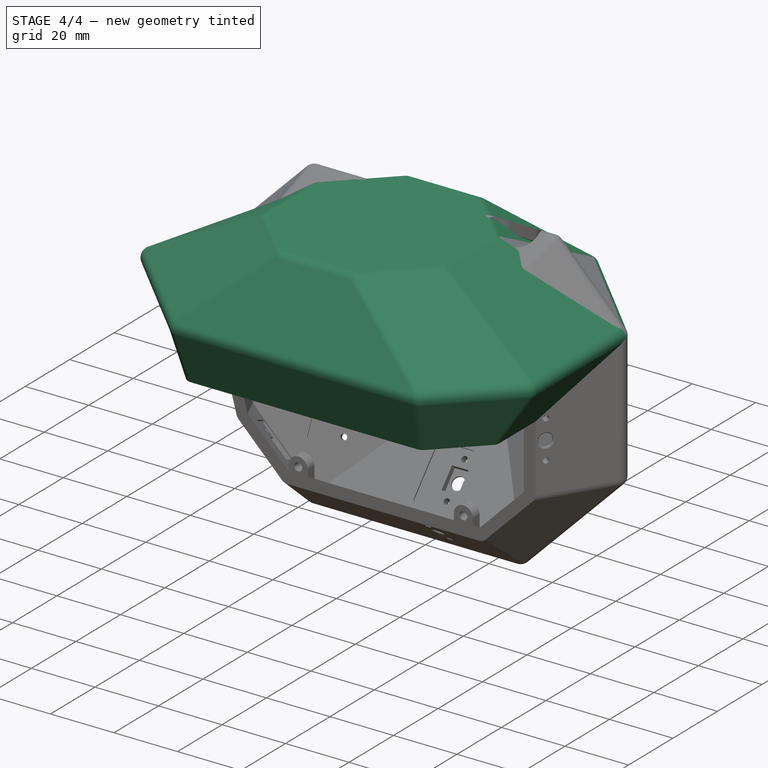
[diagram: stage 4 of 4 — iso view after this stage's code; geometry added in this stage tinted green]
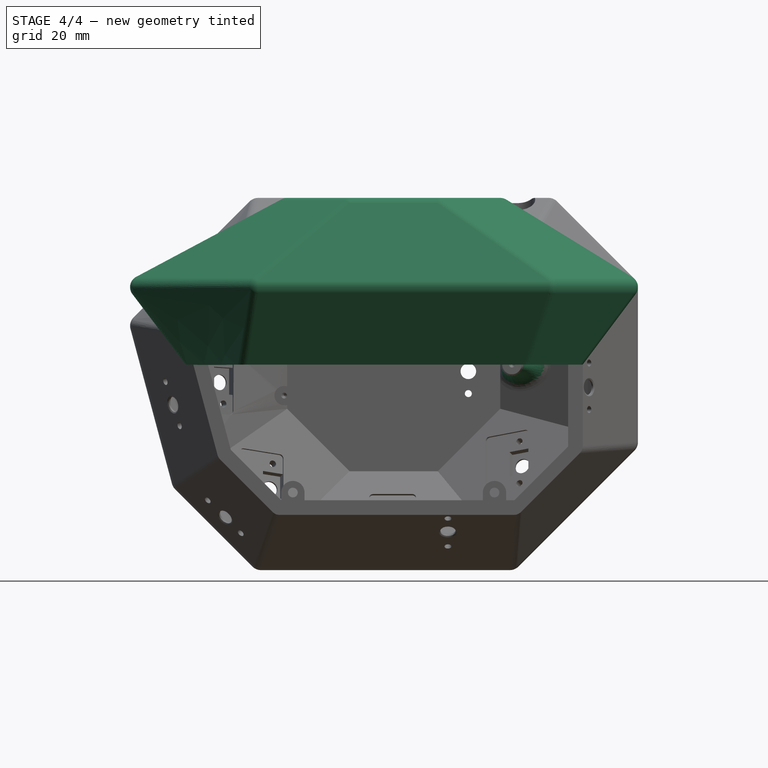
[diagram: stage 4 of 4 — front view after this stage's code; geometry added in this stage tinted green]
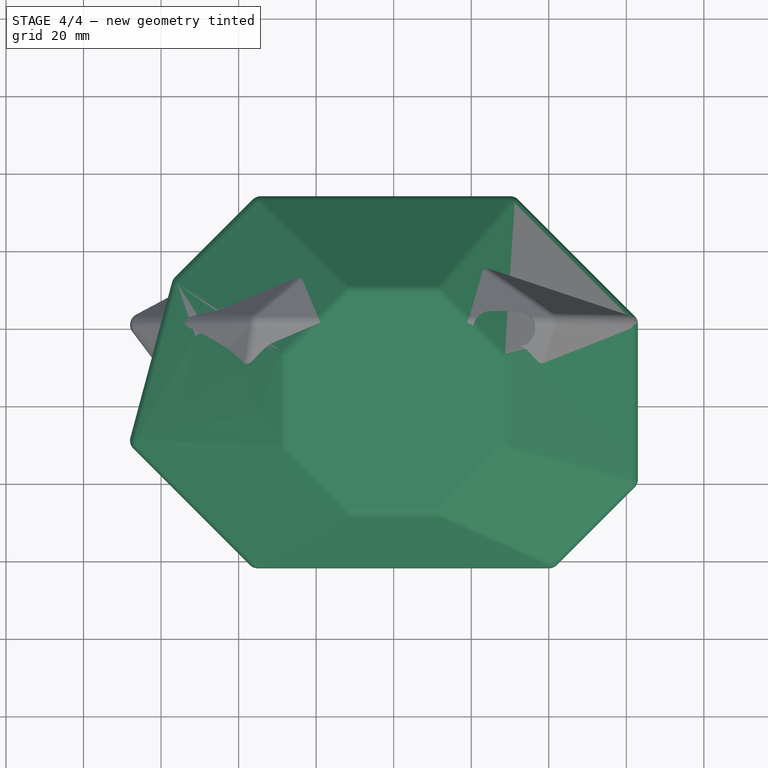
[diagram: stage 4 of 4 — top view after this stage's code; geometry added in this stage tinted green]
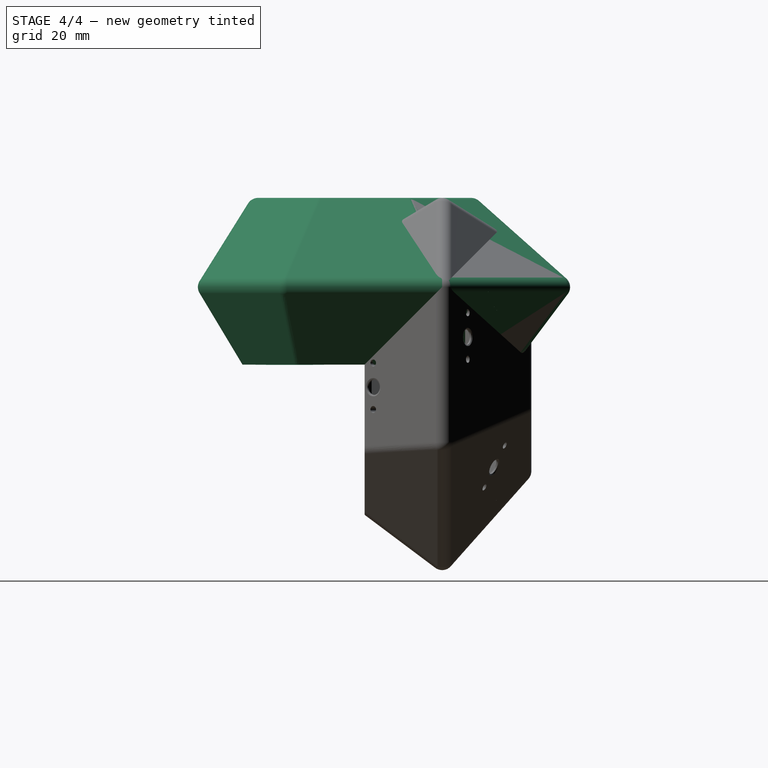
[diagram: stage 4 of 4 — right view after this stage's code; geometry added in this stage tinted green]
FEATURE [Sketcher::SketchObject] Sketch
  FullyConstrained = true
  MapMode = 5
  Support = -> [XY_Plane]
  sketch-geometry (8):
    g0: LineSegment StartX=-42 StartY=22 StartZ=0 EndX=-29 EndY=35 EndZ=0
    g1: LineSegment StartX=-29 StartY=35 StartZ=0 EndX=31.1443 EndY=35 EndZ=0
    g2: LineSegment StartX=31.1443 StartY=35 StartZ=0 EndX=45 EndY=21.1443 EndZ=0
    g3: LineSegment StartX=45 StartY=21.1443 StartZ=0 EndX=45 EndY=-16 EndZ=0
    g4: LineSegment StartX=45 StartY=-16 StartZ=0 EndX=33 EndY=-28 EndZ=0
    g5: LineSegment StartX=33 StartY=-28 StartZ=0 EndX=-38 EndY=-28 EndZ=0
    g6: LineSegment StartX=-38 StartY=-28 StartZ=0 EndX=-49.8827 EndY=-7.41858 EndZ=0
    g7: LineSegment StartX=-49.8827 StartY=-7.41858 StartZ=0 EndX=-42 EndY=22 EndZ=0
  constraints (24):
    c: Coincident(g0,g1)
    c: Horizontal(g1)
    c: Coincident(g1,g2)
    c: Coincident(g2,g3)
    c: Vertical(g3)
    c: Coincident(g3,g4)
    c: Coincident(g4,g5)
    c: Horizontal(g5)
    c: Coincident(g5,g6)
    c: Coincident(g6,g7)
    c: Coincident(g7,g0)
    c: DistanceX(g0) = -42
    c: DistanceY(g0) = 22
    c: DistanceX(g2) = 45
    c: DistanceY(g2) = 21.1443
    c: DistanceY(g3) = -16
    c: Angle(g0,g1) = 2.35619
    c: Angle(g2,g3) = 2.35619
    c: Angle(g3,g4) = 2.35619
    c: Angle(g5,g6) = 2.0944
    c: DistanceX(g5) = -38
    c: DistanceY(g0) = 35
    c: DistanceY(g5) = -28
    c: Angle(g6,g7) = 2.35619
FEATURE [App::Link] Link  label="tracker-mainboard"
  LinkPlacement = pos=(-37,17,22) rot=(-1,0,0;1.5708rad)
  LinkedObject = -> <external tracker-mainboard.FCStd>#PCB
  Placement = pos=(-37,17,22) rot=(-1,0,0;1.5708rad)
FEATURE [PartDesign::Plane] DatumPlane
  AttachmentOffset = pos=(0,0,20) rot=(0,0,1;0rad)
  Length = 153.4
  MapMode = 5
  Placement = pos=(0,0,20) rot=(0,0,1;0rad)
  ResizeMode = 0
  Support = -> [XY_Plane]
  Width = 118.403
FEATURE [PartDesign::Plane] DatumPlane001
  AttachmentOffset = pos=(0,0,20) rot=(0,0,1;0rad)
  Length = 153.4
  MapMode = 5
  Placement = pos=(0,0,40) rot=(0,0,1;0rad)
  ResizeMode = 0
  Support = -> [DatumPlane]
  Width = 118.403
FEATURE [Sketcher::SketchObject] Sketch001
  FullyConstrained = true
  MapMode = 5
  Placement = pos=(0,0,20) rot=(0,0,1;0rad)
  Support = -> [DatumPlane]
  sketch-geometry (8):
    g0: LineSegment StartX=-34.282 StartY=50 StartZ=0 EndX=30 EndY=50 EndZ=0
    g1: LineSegment StartX=30 StartY=50 StartZ=0 EndX=60 EndY=20 EndZ=0
    g2: LineSegment StartX=60 StartY=20 StartZ=0 EndX=60 EndY=-20 EndZ=0
    g3: LineSegment StartX=60 StartY=-20 StartZ=0 EndX=40 EndY=-40 EndZ=0
    g4: LineSegment StartX=40 StartY=-40 StartZ=0 EndX=-35 EndY=-40 EndZ=0
    g5: LineSegment StartX=-35 StartY=-40 StartZ=0 EndX=-65 EndY=-10 EndZ=0
    g6: LineSegment StartX=-65 StartY=-10 StartZ=0 EndX=-54.282 EndY=30 EndZ=0
    g7: LineSegment StartX=-54.282 StartY=30 StartZ=0 EndX=-34.282 EndY=50 EndZ=0
  constraints (24):
    c: Horizontal(g0)
    c: Coincident(g0,g1)
    c: Coincident(g1,g2)
    c: Vertical(g2)
    c: Coincident(g2,g3)
    c: Coincident(g3,g4)
    c: Horizontal(g4)
    c: Coincident(g4,g5)
    c: Coincident(g5,g6)
    c: Coincident(g6,g7)
    c: Coincident(g7,g0)
    c: Angle(g2,g3) = 2.35619
    c: Angle(g1,g2) = 2.35619
    c: Angle(g6,g7) = 2.61799
    c: DistanceY(g4) = -40
    c: DistanceX(g4) = -35
    c: Angle(g4,g5) = 2.35619
    c: DistanceX(g5) = -65
    c: DistanceX(g2) = 60
    c: DistanceY(g2) = -20
    c: DistanceY(g1) = 20
    c: DistanceY(g0) = 50
    c: DistanceY(g6) = 30
    c: Angle(g5,g6) = 2.0944
FEATURE [Sketcher::SketchObject] Sketch002
  FullyConstrained = true
  MapMode = 5
  Placement = pos=(0,0,40) rot=(0,0,1;0rad)
  Support = -> [DatumPlane001]
  sketch-geometry (9):
    g0: LineSegment StartX=27.5 StartY=11.3909 StartZ=0 EndX=11.3909 EndY=27.5 EndZ=0
    g1: LineSegment StartX=11.3909 StartY=27.5 StartZ=0 EndX=-11.3909 EndY=27.5 EndZ=0
    g2: LineSegment StartX=-11.3909 StartY=27.5 StartZ=0 EndX=-27.5 EndY=11.3909 EndZ=0
    g3: LineSegment StartX=-27.5 StartY=11.3909 StartZ=0 EndX=-27.5 EndY=-11.3909 EndZ=0
    g4: LineSegment StartX=-27.5 StartY=-11.3909 StartZ=0 EndX=-11.3909 EndY=-27.5 EndZ=0
    g5: LineSegment StartX=-11.3909 StartY=-27.5 StartZ=0 EndX=11.3909 EndY=-27.5 EndZ=0
    g6: LineSegment StartX=11.3909 StartY=-27.5 StartZ=0 EndX=27.5 EndY=-11.3909 EndZ=0
    g7: LineSegment StartX=27.5 StartY=-11.3909 StartZ=0 EndX=27.5 EndY=11.3909 EndZ=0
    g8: Circle CenterX=0 CenterY=0 CenterZ=0 NormalX=0 NormalY=0 NormalZ=1 AngleXU=0 Radius=29.7658
  constraints (20):
    c: Coincident(g0,g1)
    c: Coincident(g1,g2)
    c: Coincident(g2,g3)
    c: Coincident(g3,g4)
    c: Coincident(g4,g5)
    c: Coincident(g5,g6)
    c: Coincident(g6,g7)
    c: Coincident(g7,g0)
    c: Equal(g0, g1-g7) x7
    c: PointOnObject(g0,g8)
    c: PointOnObject(g1,g8)
    c: PointOnObject(g2,g8)
    c: PointOnObject(g3,g8)
    c: PointOnObject(g4,g8)
    c: PointOnObject(g5,g8)
    c: PointOnObject(g6,g8)
    c: PointOnObject(g7,g8)
    c: Coincident(g8,g-1)
    c: DistanceX(g2,g0) = 55
    c: Vertical(g3)
FEATURE [PartDesign::AdditiveLoft] AdditiveLoft
  Closed = false
  Profile = -> Sketch
  Ruled = true
  Sections = -> [Sketch001,Sketch002]
FEATURE [PartDesign::Thickness] Thickness
  Base = -> AdditiveLoft [Face1]
  BaseFeature = -> AdditiveLoft
  Intersection = false
  Join = 0
  Mode = 0
  SupportTransform = false
  Value = 3
FEATURE [Sketcher::SketchObject] Sketch002
  ExternalGeometry = -> [Pad001]
  FullyConstrained = true
  MapMode = 5
  Placement = pos=(0,0,0) rot=(1,0,0;1.5708rad)
  Support = -> [XZ_Plane]
  sketch-geometry (3):
    g0: ArcOfCircle CenterX=6 CenterY=-8 CenterZ=0 NormalX=0 NormalY=0 NormalZ=1 AngleXU=0 Radius=8 StartAngle=6.03051 EndAngle=7.85398
    g1: LineSegment StartX=13.746 StartY=-10 StartZ=0 EndX=6 EndY=-10 EndZ=0
    g2: LineSegment StartX=6 StartY=-10 StartZ=0 EndX=6 EndY=0 EndZ=0
  constraints (8):
    c: PointOnObject(g0,g-3)
    c: Radius(g0) = 8
    c: Coincident(g0,g1)
    c: Coincident(g1,g2)
    c: Coincident(g2,g0)
    c: Horizontal(g1)
    c: Coincident(g1,g-3)
    c: Tangent(g0,g-1) = 1.5708
FEATURE [PartDesign::Pad] Pad002
  BaseFeature = -> Pad001
  Direction = (0,-1,-2e-16)
  Length = 10
  Length2 = 10
  Midplane = true
  Profile = -> Sketch002
  ReferenceAxis = -> Sketch002 [N_Axis]
  Type = 0
FEATURE [PartDesign::Fillet] Fillet
  Base = -> Pad002 [Edge13,Edge5,Edge2,Edge1]
  BaseFeature = -> Pad002
  Radius = 1
  SupportTransform = false
  UseAllEdges = false
FEATURE [PartDesign::Fillet] Fillet001
  Base = -> Fillet [Edge40,Edge39]
  BaseFeature = -> Fillet
  Radius = 1
  SupportTransform = false
  UseAllEdges = false
FEATURE [PartDesign::Fillet] Fillet002
  Base = -> Fillet001 [Edge8]
  BaseFeature = -> Fillet001
  Radius = 1
  SupportTransform = false
  UseAllEdges = false
FEATURE [PartDesign::CoordinateSystem] Local_CS  label="LCS-Base"
  AttacherType = Attacher::AttachEngine3D
  AttachmentOffset = pos=(0,0,4) rot=(0,0,1;0rad)
  MapMode = 5
  Placement = pos=(0,0,4) rot=(0,0,1;0rad)
  Support = -> [XY_Plane]
FEATURE [Sketcher::SketchObject] Sketch003
  FullyConstrained = true
  MapMode = 5
  Placement = pos=(0,0,1.5) rot=(0,0,1;0rad)
  Support = -> [Fillet002]
  sketch-geometry (4):
    g0: LineSegment StartX=-6 StartY=3.5 StartZ=0 EndX=-0.5 EndY=3.5 EndZ=0
    g1: LineSegment StartX=-0.5 StartY=3.5 StartZ=0 EndX=-0.5 EndY=-3.5 EndZ=0
    g2: LineSegment StartX=-0.5 StartY=-3.5 StartZ=0 EndX=-6 EndY=-3.5 EndZ=0
    g3: LineSegment StartX=-6 StartY=-3.5 StartZ=0 EndX=-6 EndY=3.5 EndZ=0
  constraints (11):
    c: Coincident(g0,g1)
    c: Coincident(g1,g2)
    c: Coincident(g2,g3)
    c: Coincident(g3,g0)
    c: Horizontal(g0)
    c: Horizontal(g2)
    c: Vertical(g1)
    c: Symmetric(g0,g2,g-1)
    c: DistanceY(g3,g3) = 7
    c: DistanceX(g0) = -0.5
    c: DistanceX(g0,g0) = 5.5
FEATURE [PartDesign::Pad] Pad003
  BaseFeature = -> Fillet002
  Direction = (0,0,1)
  Length = 1.8
  Length2 = 10
  Profile = -> Sketch003
  ReferenceAxis = -> Sketch003 [N_Axis]
  Type = 0
FEATURE [Sketcher::SketchObject] Sketch004
  FullyConstrained = true
  MapMode = 5
  Placement = pos=(0,0,3.3) rot=(0,0,1;0rad)
  Support = -> [Pad003]
  sketch-geometry (1):
    g0: Circle CenterX=-3.25 CenterY=-0.25 CenterZ=0 NormalX=0 NormalY=0 NormalZ=1 AngleXU=0 Radius=2
  constraints (3):
    c: Diameter(g0) = 4
    c: DistanceX(g0) = -3.25
    c: DistanceY(g0) = -0.25
FEATURE [PartDesign::Pad] Pad004
  BaseFeature = -> Pad003
  Direction = (0,0,1)
  Length = 0.5
  Length2 = 10
  Profile = -> Sketch004
  ReferenceAxis = -> Sketch004 [N_Axis]
  Type = 0
FEATURE [Sketcher::SketchObject] Sketch005
  ExternalGeometry = -> [Pad004]
  FullyConstrained = true
  MapMode = 5
  Placement = pos=(0,0,3.8) rot=(0,0,1;0rad)
  Support = -> [Pad004]
  sketch-geometry (1):
    g0: Circle CenterX=-3.25 CenterY=-0.25 CenterZ=0 NormalX=0 NormalY=0 NormalZ=1 AngleXU=0 Radius=2
  constraints (2):
    c: Coincident(g0,g-3)
    c: Equal(g0,g-3)
FEATURE [PartDesign::Pad] Pad005
  BaseFeature = -> Pad004
  Direction = (0,0,1)
  Length = 7
  Length2 = 10
  Profile = -> Sketch005
  ReferenceAxis = -> Sketch005 [N_Axis]
  TaperAngle = 60
  Type = 0
FEATURE [PartDesign::Body] Body  label="stamp"
  Group = -> [Sketch,Pad,Sketch001,Pad001,Sketch002,Pad002,Fillet,Fillet001,Fillet002,Local_CS,Sketch003,Pad003,Sketch004,Pad004,Sketch005,Pad005]
  Origin = -> Origin
  Tip = -> Pad005
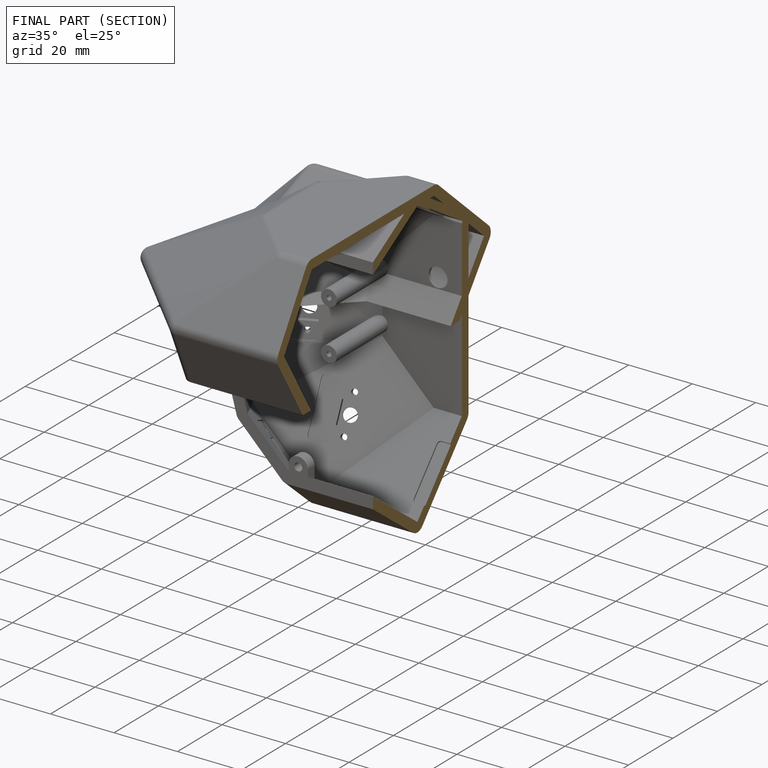
[diagram: finished part — half-section view (interior)]
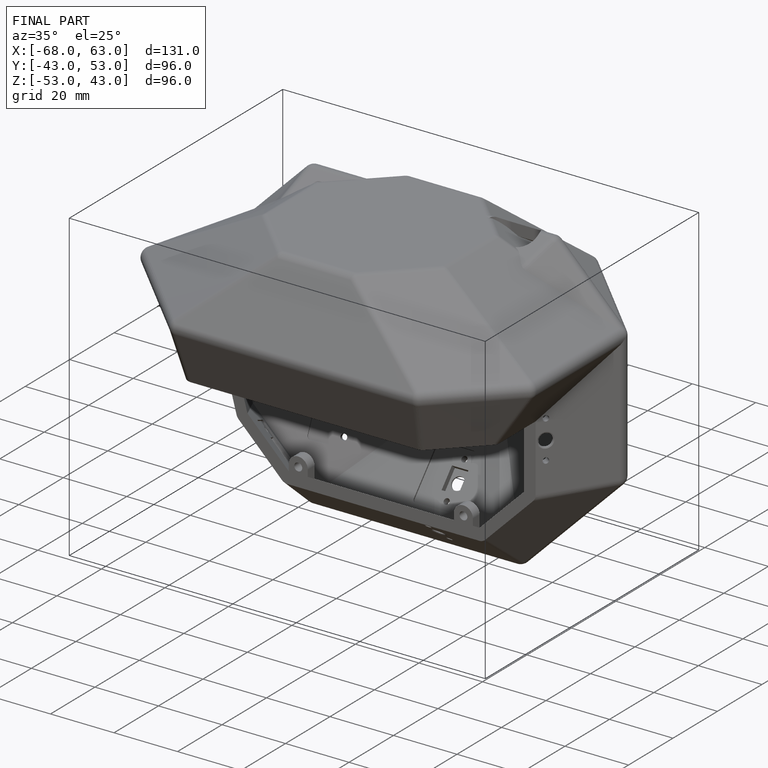
[diagram: finished part — iso view with bounding-box wireframe]
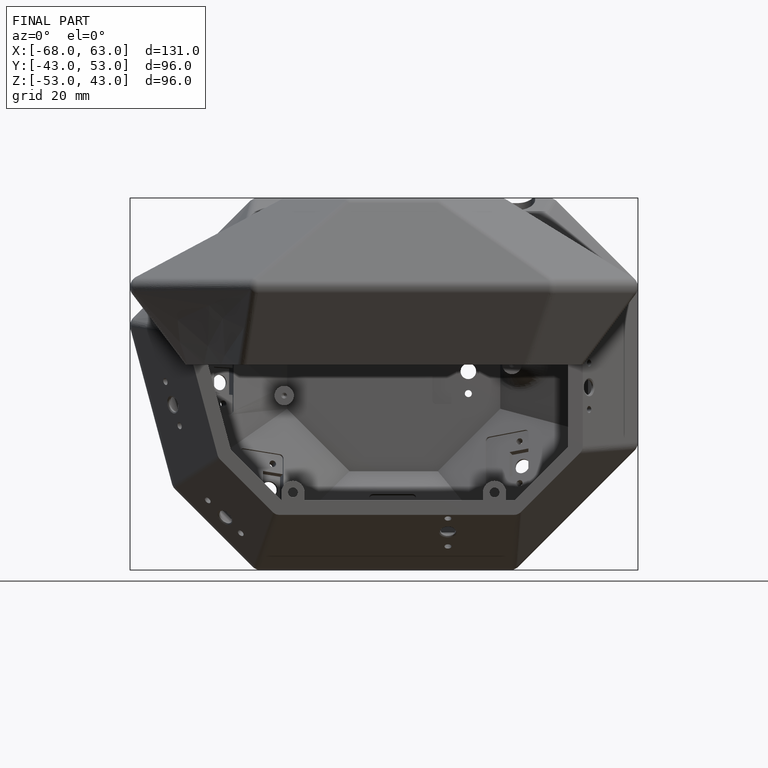
[diagram: finished part — front view with bounding-box wireframe]
